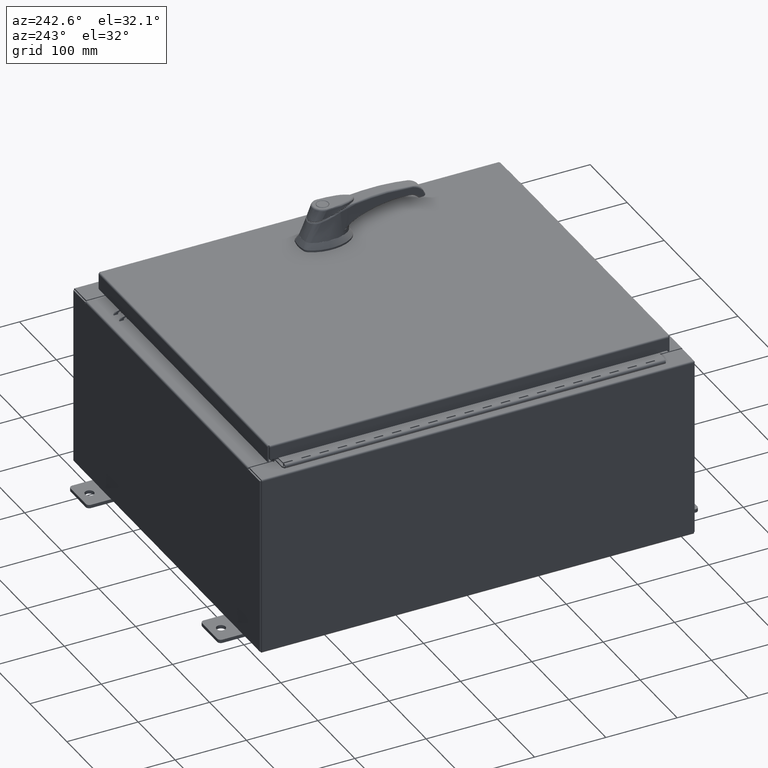
[diagram: clean part render]
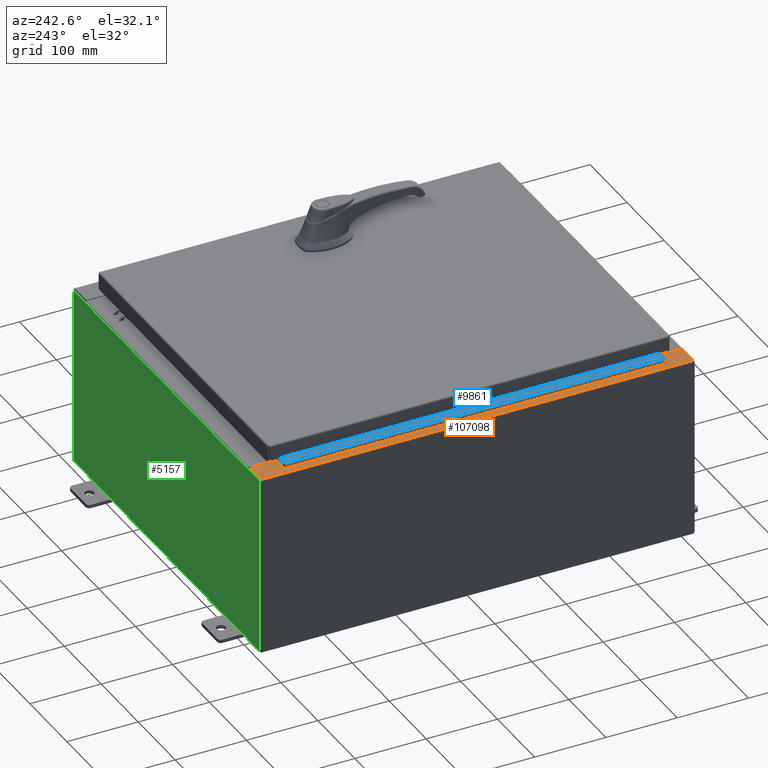
[diagram: same view with three faces highlighted in distinct colors, each labeled with its STEP entity id]
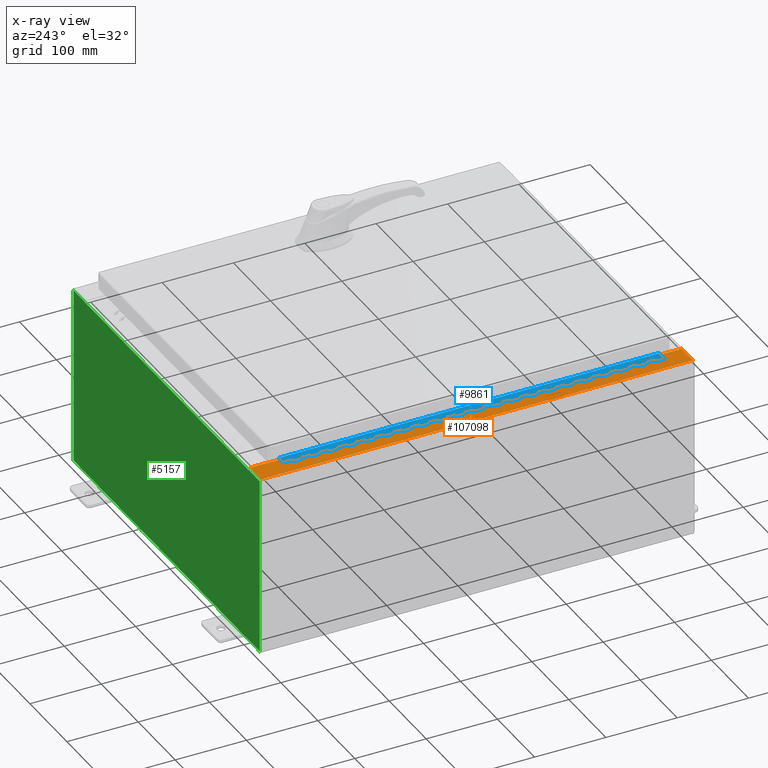
[diagram: x-ray of the same camera — body ghosted, the three highlighted faces saturated]
A machine part, auxiliary view with three faces highlighted in distinct colors.
The next image is the same camera in x-ray (body ghosted, the three faces saturated) — at least one of them is partly hidden behind the body in this view.
Their STEP definitions:

[orange] entity #107098 — the highlighted planar face has unit normal (0, 0, -1).
#392 = DIRECTION ( 'NONE',  ( -1.000000000000000000, -4.340572780399910900E-014, 0.0000000000000000000 ) ) ;
#850 = VECTOR ( 'NONE', #392, 39.37007874015748100 ) ;
#3296 = FACE_OUTER_BOUND ( 'NONE', #56001, .T. ) ;
#4998 = CARTESIAN_POINT ( 'NONE',  ( -8.750050000000037200, -10.63109999999999300, 9.925300000000005300 ) ) ;
#5630 = DIRECTION ( 'NONE',  ( -6.427586101948161900E-031, 1.000000000000000000, -4.584644437783652100E-045 ) ) ;
#5651 = EDGE_CURVE ( 'NONE', #36426, #50704, #39858, .T. ) ;
#8663 = AXIS2_PLACEMENT_3D ( 'NONE', #77132, #103685, #51070 ) ;
#9325 = DIRECTION ( 'NONE',  ( -7.132762385546378400E-015, -0.0000000000000000000, 1.000000000000000000 ) ) ;
#10771 = DIRECTION ( 'NONE',  ( 1.000000000000000000, 1.783190596386595000E-015, 7.132762385546378400E-015 ) ) ;
#10914 = DIRECTION ( 'NONE',  ( -6.427586101948161900E-031, 1.000000000000000000, -4.584644437783652100E-045 ) ) ;
#15766 = CARTESIAN_POINT ( 'NONE',  ( -9.912300000000035600, 11.92530000000000000, 9.925299999999998200 ) ) ;
#17160 = CARTESIAN_POINT ( 'NONE',  ( -9.912300000000035600, 11.92530000000000000, 9.925299999999998200 ) ) ;
#21538 = EDGE_CURVE ( 'NONE', #78593, #108132, #99447, .T. ) ;
#25104 = VERTEX_POINT ( 'NONE', #4998 ) ;
#26019 = AXIS2_PLACEMENT_3D ( 'NONE', #61670, #9325, #70493 ) ;
#28896 = VECTOR ( 'NONE', #76924, 39.37007874015748100 ) ;
#30425 = CARTESIAN_POINT ( 'NONE',  ( -8.750050000000037200, -10.61242499999999300, 9.925300000000007100 ) ) ;
#31701 = CARTESIAN_POINT ( 'NONE',  ( -8.699700000000035500, -10.63109999999999300, 9.925300000000007100 ) ) ;
#31811 = VECTOR ( 'NONE', #5630, 39.37007874015748100 ) ;
#32499 = CARTESIAN_POINT ( 'NONE',  ( -7.105562016127552700E-014, 11.92530000000000000, 9.925300000000067500 ) ) ;
#32629 = CARTESIAN_POINT ( 'NONE',  ( -8.750050000000037200, 10.59375000000000000, 9.925300000000007100 ) ) ;
#33056 = VERTEX_POINT ( 'NONE', #60629 ) ;
#33797 = ORIENTED_EDGE ( 'NONE', *, *, #21538, .F. ) ;
#35793 = ORIENTED_EDGE ( 'NONE', *, *, #82200, .T. ) ;
#36426 = VERTEX_POINT ( 'NONE', #61819 ) ;
#37303 = AXIS2_PLACEMENT_3D ( 'NONE', #30425, #91738, #39222 ) ;
#37514 = CARTESIAN_POINT ( 'NONE',  ( -8.712700000000035400, 10.59375000000000000, 9.925300000000007100 ) ) ;
#39222 = DIRECTION ( 'NONE',  ( 1.000000000000000000, 0.0000000000000000000, 0.0000000000000000000 ) ) ;
#39858 = LINE ( 'NONE', #54656, #86495 ) ;
#41761 = EDGE_CURVE ( 'NONE', #81348, #49087, #110263, .T. ) ;
#43567 = CARTESIAN_POINT ( 'NONE',  ( -8.699700000000035500, -11.92529999999999500, 9.925300000000007100 ) ) ;
#46871 = ORIENTED_EDGE ( 'NONE', *, *, #47229, .F. ) ;
#47229 = EDGE_CURVE ( 'NONE', #61555, #74987, #50063, .T. ) ;
#47854 = CARTESIAN_POINT ( 'NONE',  ( -8.750050000000037200, -10.63109999999999300, 9.925300000000007100 ) ) ;
#48594 = EDGE_CURVE ( 'NONE', #74987, #78593, #74547, .T. ) ;
#49087 = VERTEX_POINT ( 'NONE', #43567 ) ;
#50063 = LINE ( 'NONE', #105350, #850 ) ;
#50300 = CARTESIAN_POINT ( 'NONE',  ( -8.750050000000037200, -10.59374999999999300, 9.925300000000005300 ) ) ;
#50704 = VERTEX_POINT ( 'NONE', #50300 ) ;
#50907 = LINE ( 'NONE', #98579, #71469 ) ;
#51070 = DIRECTION ( 'NONE',  ( -1.000000000000000000, 0.0000000000000000000, -7.132762385546378400E-015 ) ) ;
#51373 = ORIENTED_EDGE ( 'NONE', *, *, #5651, .F. ) ;
#52136 = LINE ( 'NONE', #15766, #28896 ) ;
#54656 = CARTESIAN_POINT ( 'NONE',  ( -8.712700000000035400, -10.59374999999999300, 9.925300000000007100 ) ) ;
#54839 = CARTESIAN_POINT ( 'NONE',  ( -8.750050000000037200, 10.59375000000000000, 9.925300000000005300 ) ) ;
#55939 = ORIENTED_EDGE ( 'NONE', *, *, #48594, .F. ) ;
#56001 = EDGE_LOOP ( 'NONE', ( #46871, #113447, #79194, #56808, #95641, #35793, #59168, #80992, #51373, #108068, #33797, #55939 ) ) ;
#56808 = ORIENTED_EDGE ( 'NONE', *, *, #83518, .F. ) ;
#57073 = DIRECTION ( 'NONE',  ( 1.000000000000000000, 0.0000000000000000000, 0.0000000000000000000 ) ) ;
#58617 = DIRECTION ( 'NONE',  ( -0.0000000000000000000, -1.000000000000000000, -0.0000000000000000000 ) ) ;
#59168 = ORIENTED_EDGE ( 'NONE', *, *, #110726, .F. ) ;
#60629 = CARTESIAN_POINT ( 'NONE',  ( -8.699700000000035500, 11.92530000000000000, 9.925300000000007100 ) ) ;
#61555 = VERTEX_POINT ( 'NONE', #85370 ) ;
#61670 = CARTESIAN_POINT ( 'NONE',  ( -8.750050000000037200, 10.61242500000000000, 9.925300000000007100 ) ) ;
#61819 = CARTESIAN_POINT ( 'NONE',  ( -8.712700000000035400, -10.59374999999999300, 9.925300000000007100 ) ) ;
#66713 = LINE ( 'NONE', #102357, #107996 ) ;
#70493 = DIRECTION ( 'NONE',  ( 1.000000000000000000, 0.0000000000000000000, 0.0000000000000000000 ) ) ;
#71469 = VECTOR ( 'NONE', #10914, 39.37007874015748100 ) ;
#72297 = CARTESIAN_POINT ( 'NONE',  ( -4.979053734218649800E-014, -11.92529999999998000, 9.925300000000067500 ) ) ;
#73073 = EDGE_CURVE ( 'NONE', #33056, #102526, #103220, .T. ) ;
#74547 = CIRCLE ( 'NONE', #26019, 0.01867499999999949400 ) ;
#74972 = EDGE_CURVE ( 'NONE', #61555, #33056, #83875, .T. ) ;
#74987 = VERTEX_POINT ( 'NONE', #93699 ) ;
#75993 = CARTESIAN_POINT ( 'NONE',  ( -8.699700000000035500, -5.591807081111819100E-030, 9.925300000000007100 ) ) ;
#76924 = DIRECTION ( 'NONE',  ( -0.0000000000000000000, 1.000000000000000000, -0.0000000000000000000 ) ) ;
#77132 = CARTESIAN_POINT ( 'NONE',  ( -7.105562016127552700E-014, 0.0000000000000000000, 9.925300000000067500 ) ) ;
#78593 = VERTEX_POINT ( 'NONE', #54839 ) ;
#79194 = ORIENTED_EDGE ( 'NONE', *, *, #73073, .T. ) ;
#80586 = DIRECTION ( 'NONE',  ( -1.000000000000000000, 0.0000000000000000000, 0.0000000000000000000 ) ) ;
#80711 = EDGE_CURVE ( 'NONE', #108132, #36426, #66713, .T. ) ;
#80992 = ORIENTED_EDGE ( 'NONE', *, *, #92633, .F. ) ;
#81348 = VERTEX_POINT ( 'NONE', #86482 ) ;
#82200 = EDGE_CURVE ( 'NONE', #49087, #112140, #50907, .T. ) ;
#83518 = EDGE_CURVE ( 'NONE', #81348, #102526, #52136, .T. ) ;
#83875 = LINE ( 'NONE', #75993, #31811 ) ;
#85370 = CARTESIAN_POINT ( 'NONE',  ( -8.699700000000035500, 10.63110000000000200, 9.925300000000007100 ) ) ;
#86482 = CARTESIAN_POINT ( 'NONE',  ( -9.912300000000035600, -11.92529999999999600, 9.925299999999998200 ) ) ;
#86495 = VECTOR ( 'NONE', #80586, 39.37007874015748100 ) ;
#89918 = VECTOR ( 'NONE', #57073, 39.37007874015748100 ) ;
#91738 = DIRECTION ( 'NONE',  ( -7.132762385546378400E-015, -0.0000000000000000000, 1.000000000000000000 ) ) ;
#92633 = EDGE_CURVE ( 'NONE', #50704, #25104, #107589, .T. ) ;
#92641 = LINE ( 'NONE', #47854, #89918 ) ;
#93699 = CARTESIAN_POINT ( 'NONE',  ( -8.750050000000037200, 10.63109999999999800, 9.925300000000005300 ) ) ;
#94849 = PLANE ( 'NONE',  #8663 ) ;
#95641 = ORIENTED_EDGE ( 'NONE', *, *, #41761, .T. ) ;
#96728 = VECTOR ( 'NONE', #111627, 39.37007874015748100 ) ;
#98579 = CARTESIAN_POINT ( 'NONE',  ( -8.699700000000035500, -5.591807081111819100E-030, 9.925300000000007100 ) ) ;
#99447 = LINE ( 'NONE', #32629, #96728 ) ;
#100424 = VECTOR ( 'NONE', #108103, 39.37007874015748100 ) ;
#102357 = CARTESIAN_POINT ( 'NONE',  ( -8.712700000000035400, 10.59375000000000200, 9.925300000000007100 ) ) ;
#102526 = VERTEX_POINT ( 'NONE', #17160 ) ;
#103220 = LINE ( 'NONE', #32499, #100424 ) ;
#103685 = DIRECTION ( 'NONE',  ( 7.132762385546378400E-015, 0.0000000000000000000, -1.000000000000000000 ) ) ;
#105350 = CARTESIAN_POINT ( 'NONE',  ( -8.699700000000035500, 10.63110000000000200, 9.925300000000007100 ) ) ;
#107098 = ADVANCED_FACE ( 'NONE', ( #3296 ), #94849, .F. ) ;
#107589 = CIRCLE ( 'NONE', #37303, 0.01867499999999949400 ) ;
#107996 = VECTOR ( 'NONE', #58617, 39.37007874015748100 ) ;
#108068 = ORIENTED_EDGE ( 'NONE', *, *, #80711, .F. ) ;
#108103 = DIRECTION ( 'NONE',  ( -1.000000000000000000, -1.633973368572597200E-031, -7.132762385546378400E-015 ) ) ;
#108132 = VERTEX_POINT ( 'NONE', #37514 ) ;
#110263 = LINE ( 'NONE', #72297, #113042 ) ;
#110726 = EDGE_CURVE ( 'NONE', #25104, #112140, #92641, .T. ) ;
#111627 = DIRECTION ( 'NONE',  ( 1.000000000000000000, 0.0000000000000000000, 0.0000000000000000000 ) ) ;
#112140 = VERTEX_POINT ( 'NONE', #31701 ) ;
#113042 = VECTOR ( 'NONE', #10771, 39.37007874015748100 ) ;
#113447 = ORIENTED_EDGE ( 'NONE', *, *, #74972, .T. ) ;

[blue] entity #9861 — the highlighted planar face has unit normal (-0, -0, 1).
#44 = EDGE_CURVE ( 'NONE', #42089, #8704, #12874, .T. ) ;
#404 = CARTESIAN_POINT ( 'NONE',  ( -0.6869999999999973900, 0.8004999999999995500, -5.000000000000000000 ) ) ;
#436 = CARTESIAN_POINT ( 'NONE',  ( -0.6869999999999978300, 0.6754999999999996600, -21.00000000000000000 ) ) ;
#513 = VERTEX_POINT ( 'NONE', #83840 ) ;
#937 = CARTESIAN_POINT ( 'NONE',  ( -0.6869999999999978300, 0.6754999999999996600, -21.00000000000000000 ) ) ;
#990 = CARTESIAN_POINT ( 'NONE',  ( -0.6869999999999998300, 0.07549999999999991400, 0.0000000000000000000 ) ) ;
#1053 = VERTEX_POINT ( 'NONE', #30520 ) ;
#1138 = LINE ( 'NONE', #91485, #88818 ) ;
#1259 = CARTESIAN_POINT ( 'NONE',  ( -0.6869999999999978300, 0.6754999999999996600, -21.00000000000000000 ) ) ;
#1385 = EDGE_CURVE ( 'NONE', #99361, #32660, #16842, .T. ) ;
#1513 = LINE ( 'NONE', #64020, #109819 ) ;
#1830 = CARTESIAN_POINT ( 'NONE',  ( -0.6869999999999982800, 0.5504999999999997700, -10.00000000000000000 ) ) ;
#2016 = DIRECTION ( 'NONE',  ( -3.389037039080723100E-015, -1.000000000000000000, 0.0000000000000000000 ) ) ;
#2031 = VERTEX_POINT ( 'NONE', #14433 ) ;
#2074 = DIRECTION ( 'NONE',  ( -3.389037039080723100E-015, -1.000000000000000000, 0.0000000000000000000 ) ) ;
#2162 = VECTOR ( 'NONE', #112706, 39.37007874015748100 ) ;
#2336 = CARTESIAN_POINT ( 'NONE',  ( -0.6869999999999982800, 0.5504999999999997700, -11.50000000000000000 ) ) ;
#2356 = VECTOR ( 'NONE', #39445, 39.37007874015748100 ) ;
#2393 = EDGE_CURVE ( 'NONE', #1053, #26827, #11249, .T. ) ;
#2480 = LINE ( 'NONE', #57773, #48959 ) ;
#2580 = ORIENTED_EDGE ( 'NONE', *, *, #16507, .T. ) ;
#2700 = CARTESIAN_POINT ( 'NONE',  ( -0.6869999999999978300, 0.6754999999999996600, -4.500000000000000000 ) ) ;
#2965 = CARTESIAN_POINT ( 'NONE',  ( -0.6869999999999978300, 0.6754999999999996600, -8.000000000000000000 ) ) ;
#2975 = CARTESIAN_POINT ( 'NONE',  ( -0.6869999999999973900, 0.8004999999999995500, -19.00000000000000000 ) ) ;
#3197 = EDGE_CURVE ( 'NONE', #55909, #42844, #16625, .T. ) ;
#3486 = DIRECTION ( 'NONE',  ( 0.0000000000000000000, 0.0000000000000000000, 1.000000000000000000 ) ) ;
#3863 = LINE ( 'NONE', #20681, #27158 ) ;
#4077 = LINE ( 'NONE', #42190, #97274 ) ;
#4104 = VECTOR ( 'NONE', #5161, 39.37007874015748100 ) ;
#4216 = VERTEX_POINT ( 'NONE', #47573 ) ;
#4328 = VERTEX_POINT ( 'NONE', #7353 ) ;
#4516 = DIRECTION ( 'NONE',  ( -3.389037039080723100E-015, -1.000000000000000000, 0.0000000000000000000 ) ) ;
#4901 = VERTEX_POINT ( 'NONE', #25169 ) ;
#5025 = CARTESIAN_POINT ( 'NONE',  ( -0.6869999999999973900, 0.8004999999999995500, -3.500000000000000000 ) ) ;
#5161 = DIRECTION ( 'NONE',  ( 0.0000000000000000000, 0.0000000000000000000, 1.000000000000000000 ) ) ;
#5372 = DIRECTION ( 'NONE',  ( 0.0000000000000000000, -0.0000000000000000000, -1.000000000000000000 ) ) ;
#5513 = LINE ( 'NONE', #72598, #75287 ) ;
#5914 = LINE ( 'NONE', #33954, #52409 ) ;
#6495 = DIRECTION ( 'NONE',  ( 3.389037039080723100E-015, 1.000000000000000000, -0.0000000000000000000 ) ) ;
#6590 = DIRECTION ( 'NONE',  ( 3.389037039080723100E-015, 1.000000000000000000, -0.0000000000000000000 ) ) ;
#6667 = CARTESIAN_POINT ( 'NONE',  ( -0.6869999999999982800, 0.5504999999999997700, -8.500000000000000000 ) ) ;
#6894 = DIRECTION ( 'NONE',  ( 0.0000000000000000000, -0.0000000000000000000, -1.000000000000000000 ) ) ;
#7208 = CARTESIAN_POINT ( 'NONE',  ( -0.6869999999999978300, 0.6754999999999996600, -21.00000000000000000 ) ) ;
#7281 = EDGE_CURVE ( 'NONE', #41142, #4328, #53391, .T. ) ;
#7353 = CARTESIAN_POINT ( 'NONE',  ( -0.6869999999999978300, 0.6754999999999996600, -16.00000000000000000 ) ) ;
#7571 = VERTEX_POINT ( 'NONE', #106031 ) ;
#7716 = CARTESIAN_POINT ( 'NONE',  ( -0.6869999999999982800, 0.5504999999999997700, -6.499999999999999100 ) ) ;
#7726 = VECTOR ( 'NONE', #25868, 39.37007874015748100 ) ;
#7759 = ORIENTED_EDGE ( 'NONE', *, *, #14275, .F. ) ;
#7817 = CARTESIAN_POINT ( 'NONE',  ( -0.6869999999999978300, 0.6754999999999996600, -0.5000000000000000000 ) ) ;
#7913 = VERTEX_POINT ( 'NONE', #83244 ) ;
#7941 = DIRECTION ( 'NONE',  ( 0.0000000000000000000, 0.0000000000000000000, 1.000000000000000000 ) ) ;
#8123 = EDGE_CURVE ( 'NONE', #38321, #8704, #9527, .T. ) ;
#8526 = CARTESIAN_POINT ( 'NONE',  ( -0.6869999999999978300, 0.6754999999999996600, -13.50000000000000000 ) ) ;
#8539 = DIRECTION ( 'NONE',  ( 0.0000000000000000000, -0.0000000000000000000, -1.000000000000000000 ) ) ;
#8574 = VECTOR ( 'NONE', #81202, 39.37007874015748100 ) ;
#8618 = VECTOR ( 'NONE', #85750, 39.37007874015748100 ) ;
#8661 = VECTOR ( 'NONE', #57454, 39.37007874015748100 ) ;
#8704 = VERTEX_POINT ( 'NONE', #110798 ) ;
#8760 = ORIENTED_EDGE ( 'NONE', *, *, #21693, .F. ) ;
#8786 = EDGE_CURVE ( 'NONE', #41142, #76740, #32661, .T. ) ;
#8985 = VERTEX_POINT ( 'NONE', #60689 ) ;
#9049 = LINE ( 'NONE', #937, #52770 ) ;
#9059 = EDGE_CURVE ( 'NONE', #23447, #97213, #42214, .T. ) ;
#9150 = EDGE_CURVE ( 'NONE', #111226, #7913, #39422, .T. ) ;
#9439 = ORIENTED_EDGE ( 'NONE', *, *, #101188, .F. ) ;
#9457 = EDGE_CURVE ( 'NONE', #103866, #17915, #2480, .T. ) ;
#9519 = VECTOR ( 'NONE', #65883, 39.37007874015748100 ) ;
#9518 = CARTESIAN_POINT ( 'NONE',  ( -0.6869999999999978300, 0.6754999999999996600, -15.50000000000000000 ) ) ;
#9527 = LINE ( 'NONE', #103254, #97195 ) ;
#9594 = DIRECTION ( 'NONE',  ( 3.389037039080723100E-015, 1.000000000000000000, -0.0000000000000000000 ) ) ;
#9655 = ORIENTED_EDGE ( 'NONE', *, *, #64523, .F. ) ;
#9816 = CARTESIAN_POINT ( 'NONE',  ( -0.6869999999999978300, 0.6754999999999996600, -21.00000000000000000 ) ) ;
#9861 = ADVANCED_FACE ( 'NONE', ( #47530 ), #107602, .T. ) ;
#10894 = CARTESIAN_POINT ( 'NONE',  ( -0.6869999999999973900, 0.8004999999999995500, -1.499999999999999800 ) ) ;
#10926 = DIRECTION ( 'NONE',  ( -3.389037039080723100E-015, -1.000000000000000000, 0.0000000000000000000 ) ) ;
#11249 = LINE ( 'NONE', #88910, #98907 ) ;
#11578 = DIRECTION ( 'NONE',  ( 3.389037039080723100E-015, 1.000000000000000000, -0.0000000000000000000 ) ) ;
#11664 = CARTESIAN_POINT ( 'NONE',  ( -0.6869999999999982800, 0.5504999999999997700, -9.500000000000000000 ) ) ;
#11807 = DIRECTION ( 'NONE',  ( 3.389037039080723100E-015, 1.000000000000000000, -0.0000000000000000000 ) ) ;
#12021 = VECTOR ( 'NONE', #8539, 39.37007874015748100 ) ;
#12093 = CARTESIAN_POINT ( 'NONE',  ( -0.6869999999999982800, 0.5504999999999997700, -14.49999999999999800 ) ) ;
#12294 = EDGE_CURVE ( 'NONE', #93665, #32738, #71956, .T. ) ;
#12874 = LINE ( 'NONE', #92402, #79928 ) ;
#13057 = VECTOR ( 'NONE', #96913, 39.37007874015748100 ) ;
#13224 = ORIENTED_EDGE ( 'NONE', *, *, #55659, .T. ) ;
#13388 = ORIENTED_EDGE ( 'NONE', *, *, #77105, .T. ) ;
#13469 = ORIENTED_EDGE ( 'NONE', *, *, #100346, .T. ) ;
#13520 = VECTOR ( 'NONE', #2016, 39.37007874015748100 ) ;
#13552 = CARTESIAN_POINT ( 'NONE',  ( -0.6869999999999973900, 0.8004999999999995500, -9.500000000000000000 ) ) ;
#13714 = EDGE_CURVE ( 'NONE', #8985, #513, #21165, .T. ) ;
#13858 = CARTESIAN_POINT ( 'NONE',  ( -0.6869999999999982800, 0.5504999999999997700, -15.50000000000000000 ) ) ;
#13945 = ORIENTED_EDGE ( 'NONE', *, *, #64173, .F. ) ;
#14275 = EDGE_CURVE ( 'NONE', #33190, #77324, #86850, .T. ) ;
#14433 = CARTESIAN_POINT ( 'NONE',  ( -0.6869999999999982800, 0.5504999999999997700, -11.99999999999999800 ) ) ;
#14802 = EDGE_CURVE ( 'NONE', #39192, #40907, #78685, .T. ) ;
#14992 = DIRECTION ( 'NONE',  ( 0.0000000000000000000, -0.0000000000000000000, -1.000000000000000000 ) ) ;
#15013 = EDGE_CURVE ( 'NONE', #48555, #18998, #67671, .T. ) ;
#15044 = ORIENTED_EDGE ( 'NONE', *, *, #103931, .F. ) ;
#15182 = CARTESIAN_POINT ( 'NONE',  ( -0.6869999999999973900, 0.8004999999999995500, -7.000000000000000000 ) ) ;
#16003 = VECTOR ( 'NONE', #14992, 39.37007874015748100 ) ;
#16114 = ORIENTED_EDGE ( 'NONE', *, *, #66548, .T. ) ;
#16328 = DIRECTION ( 'NONE',  ( 0.0000000000000000000, -0.0000000000000000000, -1.000000000000000000 ) ) ;
#16507 = EDGE_CURVE ( 'NONE', #34297, #27335, #42877, .T. ) ;
#16536 = CARTESIAN_POINT ( 'NONE',  ( -0.6869999999999978300, 0.6754999999999996600, -17.50000000000000000 ) ) ;
#16625 = LINE ( 'NONE', #9816, #63095 ) ;
#16842 = LINE ( 'NONE', #24040, #60598 ) ;
#16998 = EDGE_CURVE ( 'NONE', #26427, #7571, #105971, .T. ) ;
#17114 = DIRECTION ( 'NONE',  ( 0.0000000000000000000, 0.0000000000000000000, 1.000000000000000000 ) ) ;
#17142 = ORIENTED_EDGE ( 'NONE', *, *, #54578, .F. ) ;
#17181 = ORIENTED_EDGE ( 'NONE', *, *, #45260, .F. ) ;
#17205 = CARTESIAN_POINT ( 'NONE',  ( -0.6869999999999982800, 0.5504999999999997700, -2.500000000000000000 ) ) ;
#17447 = LINE ( 'NONE', #101354, #37906 ) ;
#17726 = LINE ( 'NONE', #12093, #64170 ) ;
#17781 = CARTESIAN_POINT ( 'NONE',  ( -0.6869999999999982800, 0.5504999999999997700, -20.50000000000000400 ) ) ;
#17859 = DIRECTION ( 'NONE',  ( 3.389037039080723100E-015, 1.000000000000000000, -0.0000000000000000000 ) ) ;
#17910 = ORIENTED_EDGE ( 'NONE', *, *, #105121, .T. ) ;
#17915 = VERTEX_POINT ( 'NONE', #37793 ) ;
#17946 = VECTOR ( 'NONE', #51556, 39.37007874015748100 ) ;
#18038 = CARTESIAN_POINT ( 'NONE',  ( -0.6869999999999978300, 0.6754999999999996600, -21.00000000000000000 ) ) ;
#18134 = LINE ( 'NONE', #15182, #85183 ) ;
#18390 = DIRECTION ( 'NONE',  ( -3.389037039080723100E-015, -1.000000000000000000, 0.0000000000000000000 ) ) ;
#18940 = CARTESIAN_POINT ( 'NONE',  ( -0.6869999999999982800, 0.5504999999999997700, -17.99999999999999600 ) ) ;
#18998 = VERTEX_POINT ( 'NONE', #38271 ) ;
#19232 = DIRECTION ( 'NONE',  ( 3.389037039080723100E-015, 1.000000000000000000, -0.0000000000000000000 ) ) ;
#19315 = CARTESIAN_POINT ( 'NONE',  ( -0.6869999999999982800, 0.5504999999999997700, -5.500000000000000000 ) ) ;
#19346 = CARTESIAN_POINT ( 'NONE',  ( -0.6869999999999978300, 0.6754999999999996600, -10.50000000000000000 ) ) ;
#19636 = ORIENTED_EDGE ( 'NONE', *, *, #92272, .F. ) ;
#19675 = VECTOR ( 'NONE', #47391, 39.37007874015748100 ) ;
#19685 = DIRECTION ( 'NONE',  ( -3.389037039080723100E-015, -1.000000000000000000, 0.0000000000000000000 ) ) ;
#19688 = EDGE_CURVE ( 'NONE', #25905, #80966, #76296, .T. ) ;
#19809 = VECTOR ( 'NONE', #7941, 39.37007874015748100 ) ;
#20141 = CARTESIAN_POINT ( 'NONE',  ( -0.6869999999999973900, 0.8004999999999995500, -17.50000000000000000 ) ) ;
#20255 = DIRECTION ( 'NONE',  ( 3.389037039080723100E-015, 1.000000000000000000, -0.0000000000000000000 ) ) ;
#20276 = DIRECTION ( 'NONE',  ( 3.389037039080723100E-015, 1.000000000000000000, -0.0000000000000000000 ) ) ;
#20426 = LINE ( 'NONE', #111319, #113702 ) ;
#20535 = ORIENTED_EDGE ( 'NONE', *, *, #98172, .F. ) ;
#20681 = CARTESIAN_POINT ( 'NONE',  ( -0.6869999999999973900, 0.8004999999999995500, -2.000000000000000000 ) ) ;
#20919 = DIRECTION ( 'NONE',  ( 3.369016658928398200E-015, 1.000000000000000000, 0.0000000000000000000 ) ) ;
#20994 = EDGE_CURVE ( 'NONE', #111388, #27335, #33696, .T. ) ;
#21038 = CARTESIAN_POINT ( 'NONE',  ( -0.6869999999999982800, 0.5504999999999997700, -21.00000000000000000 ) ) ;
#21165 = LINE ( 'NONE', #10894, #64892 ) ;
#21581 = VECTOR ( 'NONE', #29096, 39.37007874015748100 ) ;
#21693 = EDGE_CURVE ( 'NONE', #28306, #4901, #109076, .T. ) ;
#21975 = CARTESIAN_POINT ( 'NONE',  ( -0.6869999999999982800, 0.5504999999999997700, -3.500000000000000000 ) ) ;
#22138 = CARTESIAN_POINT ( 'NONE',  ( -0.6869999999999973900, 0.8004999999999995500, -14.49999999999999800 ) ) ;
#22147 = ORIENTED_EDGE ( 'NONE', *, *, #39412, .F. ) ;
#22162 = VERTEX_POINT ( 'NONE', #68415 ) ;
#22182 = VERTEX_POINT ( 'NONE', #42405 ) ;
#22814 = VERTEX_POINT ( 'NONE', #59367 ) ;
#22846 = LINE ( 'NONE', #58197, #66581 ) ;
#22927 = LINE ( 'NONE', #53129, #63943 ) ;
#22997 = ORIENTED_EDGE ( 'NONE', *, *, #96155, .F. ) ;
#23011 = DIRECTION ( 'NONE',  ( -3.389037039080723100E-015, -1.000000000000000000, 0.0000000000000000000 ) ) ;
#23139 = ORIENTED_EDGE ( 'NONE', *, *, #75304, .F. ) ;
#23267 = ORIENTED_EDGE ( 'NONE', *, *, #96201, .F. ) ;
#23277 = CARTESIAN_POINT ( 'NONE',  ( -0.6869999999999982800, 0.5504999999999997700, -6.499999999999999100 ) ) ;
#23447 = VERTEX_POINT ( 'NONE', #16536 ) ;
#23477 = LINE ( 'NONE', #108221, #111245 ) ;
#23804 = VERTEX_POINT ( 'NONE', #21038 ) ;
#23819 = DIRECTION ( 'NONE',  ( -3.389037039080723100E-015, -1.000000000000000000, 0.0000000000000000000 ) ) ;
#24040 = CARTESIAN_POINT ( 'NONE',  ( -0.6869999999999973900, 0.8004999999999995500, -2.500000000000000000 ) ) ;
#24178 = DIRECTION ( 'NONE',  ( -3.389037039080723100E-015, -1.000000000000000000, 0.0000000000000000000 ) ) ;
#24239 = VECTOR ( 'NONE', #112563, 39.37007874015748100 ) ;
#24338 = LINE ( 'NONE', #55106, #21581 ) ;
#24341 = VERTEX_POINT ( 'NONE', #17781 ) ;
#24451 = CARTESIAN_POINT ( 'NONE',  ( -0.6869999999999973900, 0.8004999999999995500, -18.50000000000000000 ) ) ;
#24523 = CARTESIAN_POINT ( 'NONE',  ( -0.6869999999999973900, 0.8004999999999995500, -11.00000000000000000 ) ) ;
#24754 = VECTOR ( 'NONE', #96485, 39.37007874015748100 ) ;
#25144 = LINE ( 'NONE', #38618, #19675 ) ;
#25168 = LINE ( 'NONE', #5025, #92285 ) ;
#25169 = CARTESIAN_POINT ( 'NONE',  ( -0.6869999999999982800, 0.5504999999999997700, -4.000000000000000000 ) ) ;
#25182 = EDGE_CURVE ( 'NONE', #82058, #56576, #75616, .T. ) ;
#25622 = LINE ( 'NONE', #94952, #46091 ) ;
#25646 = ORIENTED_EDGE ( 'NONE', *, *, #84532, .F. ) ;
#25868 = DIRECTION ( 'NONE',  ( 3.389037039080723100E-015, 1.000000000000000000, -0.0000000000000000000 ) ) ;
#25905 = VERTEX_POINT ( 'NONE', #6667 ) ;
#25946 = CARTESIAN_POINT ( 'NONE',  ( -0.6869999999999982800, 0.5504999999999997700, -6.000000000000000900 ) ) ;
#25963 = LINE ( 'NONE', #71705, #90379 ) ;
#25999 = LINE ( 'NONE', #82877, #93137 ) ;
#26060 = VECTOR ( 'NONE', #11807, 39.37007874015748100 ) ;
#26375 = VECTOR ( 'NONE', #49699, 39.37007874015748100 ) ;
#26427 = VERTEX_POINT ( 'NONE', #58297 ) ;
#26513 = CARTESIAN_POINT ( 'NONE',  ( -0.6869999999999978300, 0.6754999999999996600, -14.99999999999999800 ) ) ;
#26827 = VERTEX_POINT ( 'NONE', #26513 ) ;
#27158 = VECTOR ( 'NONE', #108060, 39.37007874015748100 ) ;
#27210 = CARTESIAN_POINT ( 'NONE',  ( -0.6869999999999978300, 0.6754999999999996600, -2.999999999999999600 ) ) ;
#27211 = ORIENTED_EDGE ( 'NONE', *, *, #99021, .F. ) ;
#27335 = VERTEX_POINT ( 'NONE', #84587 ) ;
#27378 = VECTOR ( 'NONE', #43724, 39.37007874015748100 ) ;
#27518 = EDGE_CURVE ( 'NONE', #88504, #28717, #97390, .T. ) ;
#27540 = VECTOR ( 'NONE', #62533, 39.37007874015748100 ) ;
#27734 = VERTEX_POINT ( 'NONE', #72967 ) ;
#27997 = VECTOR ( 'NONE', #68325, 39.37007874015748100 ) ;
#28124 = CARTESIAN_POINT ( 'NONE',  ( -0.6869999999999978300, 0.6754999999999996600, -9.500000000000000000 ) ) ;
#28164 = VERTEX_POINT ( 'NONE', #990 ) ;
#28306 = VERTEX_POINT ( 'NONE', #21975 ) ;
#28357 = CARTESIAN_POINT ( 'NONE',  ( -0.6869999999999973900, 0.8004999999999995500, -17.00000000000000000 ) ) ;
#28367 = EDGE_CURVE ( 'NONE', #51155, #81564, #4077, .T. ) ;
#28717 = VERTEX_POINT ( 'NONE', #98837 ) ;
#28730 = VECTOR ( 'NONE', #20919, 39.37007874015748100 ) ;
#28872 = DIRECTION ( 'NONE',  ( -3.389037039080723100E-015, -1.000000000000000000, 0.0000000000000000000 ) ) ;
#29096 = DIRECTION ( 'NONE',  ( 0.0000000000000000000, 0.0000000000000000000, 1.000000000000000000 ) ) ;
#29268 = ORIENTED_EDGE ( 'NONE', *, *, #30350, .F. ) ;
#29281 = VECTOR ( 'NONE', #94324, 39.37007874015748100 ) ;
#29612 = CARTESIAN_POINT ( 'NONE',  ( -0.6869999999999978300, 0.6754999999999996600, -2.000000000000000000 ) ) ;
#29640 = DIRECTION ( 'NONE',  ( -3.389037039080723100E-015, -1.000000000000000000, 0.0000000000000000000 ) ) ;
#29927 = ORIENTED_EDGE ( 'NONE', *, *, #41531, .F. ) ;
#30350 = EDGE_CURVE ( 'NONE', #513, #37258, #25963, .T. ) ;
#30520 = CARTESIAN_POINT ( 'NONE',  ( -0.6869999999999982800, 0.5504999999999997700, -14.99999999999999800 ) ) ;
#30574 = EDGE_CURVE ( 'NONE', #76027, #33190, #76547, .T. ) ;
#31099 = ORIENTED_EDGE ( 'NONE', *, *, #9457, .F. ) ;
#31203 = ORIENTED_EDGE ( 'NONE', *, *, #95176, .F. ) ;
#31485 = VERTEX_POINT ( 'NONE', #35123 ) ;
#31491 = ORIENTED_EDGE ( 'NONE', *, *, #25182, .F. ) ;
#31572 = EDGE_CURVE ( 'NONE', #17915, #4328, #48067, .T. ) ;
#31577 = CARTESIAN_POINT ( 'NONE',  ( -0.6869999999999982800, 0.5504999999999997700, -16.50000000000000000 ) ) ;
#31680 = CARTESIAN_POINT ( 'NONE',  ( -0.6869999999999978300, 0.6754999999999996600, -21.00000000000000000 ) ) ;
#31875 = LINE ( 'NONE', #92349, #8661 ) ;
#32126 = VECTOR ( 'NONE', #102985, 39.37007874015748100 ) ;
#32471 = ORIENTED_EDGE ( 'NONE', *, *, #54661, .F. ) ;
#32642 = VERTEX_POINT ( 'NONE', #104531 ) ;
#32660 = VERTEX_POINT ( 'NONE', #17205 ) ;
#32661 = LINE ( 'NONE', #58598, #66854 ) ;
#32738 = VERTEX_POINT ( 'NONE', #108700 ) ;
#32794 = ORIENTED_EDGE ( 'NONE', *, *, #28367, .F. ) ;
#32801 = LINE ( 'NONE', #61412, #56058 ) ;
#32906 = LINE ( 'NONE', #112267, #82222 ) ;
#33190 = VERTEX_POINT ( 'NONE', #11664 ) ;
#33247 = ORIENTED_EDGE ( 'NONE', *, *, #108626, .F. ) ;
#33457 = LINE ( 'NONE', #54482, #100634 ) ;
#33680 = LINE ( 'NONE', #7208, #80248 ) ;
#33696 = LINE ( 'NONE', #60650, #7726 ) ;
#33954 = CARTESIAN_POINT ( 'NONE',  ( -0.6869999999999982800, 0.5504999999999997700, -4.500000000000000000 ) ) ;
#34297 = VERTEX_POINT ( 'NONE', #54852 ) ;
#34586 = ORIENTED_EDGE ( 'NONE', *, *, #72435, .T. ) ;
#34744 = EDGE_CURVE ( 'NONE', #81564, #81550, #97337, .T. ) ;
#35123 = CARTESIAN_POINT ( 'NONE',  ( -0.6869999999999978300, 0.6754999999999996600, 0.0000000000000000000 ) ) ;
#35148 = CARTESIAN_POINT ( 'NONE',  ( -0.6869999999999973900, 0.8004999999999995500, -13.50000000000000000 ) ) ;
#35256 = LINE ( 'NONE', #43302, #12021 ) ;
#35314 = ORIENTED_EDGE ( 'NONE', *, *, #14802, .F. ) ;
#35362 = ORIENTED_EDGE ( 'NONE', *, *, #106719, .T. ) ;
#35456 = DIRECTION ( 'NONE',  ( 0.0000000000000000000, 0.0000000000000000000, 1.000000000000000000 ) ) ;
#35579 = DIRECTION ( 'NONE',  ( 0.0000000000000000000, 0.0000000000000000000, 1.000000000000000000 ) ) ;
#35650 = VECTOR ( 'NONE', #103039, 39.37007874015748100 ) ;
#36068 = EDGE_CURVE ( 'NONE', #34297, #42348, #83406, .T. ) ;
#36167 = CARTESIAN_POINT ( 'NONE',  ( -0.6869999999999978300, 0.6754999999999996600, -21.00000000000000000 ) ) ;
#36318 = ORIENTED_EDGE ( 'NONE', *, *, #51710, .F. ) ;
#36772 = CARTESIAN_POINT ( 'NONE',  ( -0.6869999999999973900, 0.8004999999999995500, -4.500000000000000000 ) ) ;
#36778 = LINE ( 'NONE', #107002, #13520 ) ;
#37169 = VERTEX_POINT ( 'NONE', #18940 ) ;
#37258 = VERTEX_POINT ( 'NONE', #100435 ) ;
#37668 = ORIENTED_EDGE ( 'NONE', *, *, #9059, .F. ) ;
#37705 = VERTEX_POINT ( 'NONE', #98417 ) ;
#37793 = CARTESIAN_POINT ( 'NONE',  ( -0.6869999999999982800, 0.5504999999999997700, -16.00000000000000000 ) ) ;
#37822 = CARTESIAN_POINT ( 'NONE',  ( -0.6869999999999982800, 0.5504999999999997700, -14.00000000000000000 ) ) ;
#37906 = VECTOR ( 'NONE', #40007, 39.37007874015748100 ) ;
#38017 = DIRECTION ( 'NONE',  ( -3.389037039080723100E-015, -1.000000000000000000, 0.0000000000000000000 ) ) ;
#38082 = EDGE_CURVE ( 'NONE', #96513, #73142, #22927, .T. ) ;
#38149 = ORIENTED_EDGE ( 'NONE', *, *, #7281, .T. ) ;
#38271 = CARTESIAN_POINT ( 'NONE',  ( -0.6869999999999982800, 0.5504999999999997700, -0.5000000000000000000 ) ) ;
#38278 = VECTOR ( 'NONE', #35579, 39.37007874015748100 ) ;
#38321 = VERTEX_POINT ( 'NONE', #72603 ) ;
#38362 = LINE ( 'NONE', #111886, #79456 ) ;
#38413 = LINE ( 'NONE', #404, #102927 ) ;
#38618 = CARTESIAN_POINT ( 'NONE',  ( -0.6869999999999978300, 0.6754999999999996600, -21.00000000000000000 ) ) ;
#38682 = VECTOR ( 'NONE', #35456, 39.37007874015748100 ) ;
#39190 = LINE ( 'NONE', #49712, #16003 ) ;
#39192 = VERTEX_POINT ( 'NONE', #43977 ) ;
#39412 = EDGE_CURVE ( 'NONE', #80966, #4216, #91284, .T. ) ;
#39422 = LINE ( 'NONE', #99764, #83265 ) ;
#39445 = DIRECTION ( 'NONE',  ( 0.0000000000000000000, -0.0000000000000000000, -1.000000000000000000 ) ) ;
#39587 = EDGE_CURVE ( 'NONE', #96655, #64915, #33680, .T. ) ;
#39764 = CARTESIAN_POINT ( 'NONE',  ( -0.6869999999999978300, 0.6754999999999996600, -10.00000000000000000 ) ) ;
#39803 = CARTESIAN_POINT ( 'NONE',  ( -0.6869999999999978300, 0.6754999999999996600, -7.000000000000000000 ) ) ;
#40007 = DIRECTION ( 'NONE',  ( 3.389037039080723100E-015, 1.000000000000000000, -0.0000000000000000000 ) ) ;
#40280 = DIRECTION ( 'NONE',  ( 3.389037039080723100E-015, 1.000000000000000000, -0.0000000000000000000 ) ) ;
#40281 = DIRECTION ( 'NONE',  ( 3.389037039080723100E-015, 1.000000000000000000, -0.0000000000000000000 ) ) ;
#40907 = VERTEX_POINT ( 'NONE', #67698 ) ;
#41142 = VERTEX_POINT ( 'NONE', #52737 ) ;
#41531 = EDGE_CURVE ( 'NONE', #73142, #72195, #53970, .T. ) ;
#41574 = ORIENTED_EDGE ( 'NONE', *, *, #38082, .F. ) ;
#41684 = CARTESIAN_POINT ( 'NONE',  ( -0.6869999999999978300, 0.6754999999999996600, -21.00000000000000000 ) ) ;
#41817 = CARTESIAN_POINT ( 'NONE',  ( -0.6869999999999973900, 0.8004999999999995500, -7.499999999999999100 ) ) ;
#42089 = VERTEX_POINT ( 'NONE', #25946 ) ;
#42190 = CARTESIAN_POINT ( 'NONE',  ( -0.6869999999999982800, 0.5504999999999997700, -7.499999999999999100 ) ) ;
#42214 = LINE ( 'NONE', #20141, #112229 ) ;
#42278 = ORIENTED_EDGE ( 'NONE', *, *, #44, .F. ) ;
#42348 = VERTEX_POINT ( 'NONE', #65218 ) ;
#42402 = DIRECTION ( 'NONE',  ( 0.0000000000000000000, -0.0000000000000000000, -1.000000000000000000 ) ) ;
#42405 = CARTESIAN_POINT ( 'NONE',  ( -0.6869999999999978300, 0.6754999999999996600, -11.50000000000000000 ) ) ;
#42733 = DIRECTION ( 'NONE',  ( 0.0000000000000000000, -0.0000000000000000000, -1.000000000000000000 ) ) ;
#42844 = VERTEX_POINT ( 'NONE', #62467 ) ;
#42850 = VECTOR ( 'NONE', #62441, 39.37007874015748100 ) ;
#42877 = LINE ( 'NONE', #31680, #86765 ) ;
#43023 = LINE ( 'NONE', #60317, #19809 ) ;
#43033 = CARTESIAN_POINT ( 'NONE',  ( -0.6869999999999982800, 0.5504999999999997700, -11.00000000000000000 ) ) ;
#43179 = CARTESIAN_POINT ( 'NONE',  ( -0.6869999999999982800, 0.5504999999999997700, -19.50000000000000000 ) ) ;
#43190 = CARTESIAN_POINT ( 'NONE',  ( -0.6869999999999982800, 0.5504999999999997700, -17.00000000000000000 ) ) ;
#43302 = CARTESIAN_POINT ( 'NONE',  ( -0.6869999999999982800, 0.5504999999999997700, -11.50000000000000000 ) ) ;
#43724 = DIRECTION ( 'NONE',  ( -3.389037039080723100E-015, -1.000000000000000000, 0.0000000000000000000 ) ) ;
#43977 = CARTESIAN_POINT ( 'NONE',  ( -0.6869999999999978300, 0.6754999999999996600, -18.50000000000000000 ) ) ;
#44039 = DIRECTION ( 'NONE',  ( 0.0000000000000000000, -0.0000000000000000000, -1.000000000000000000 ) ) ;
#44367 = CARTESIAN_POINT ( 'NONE',  ( -0.6869999999999982800, 0.5504999999999997700, -9.500000000000000000 ) ) ;
#44408 = VECTOR ( 'NONE', #106392, 39.37007874015748100 ) ;
#44633 = VECTOR ( 'NONE', #20276, 39.37007874015748100 ) ;
#44660 = EDGE_CURVE ( 'NONE', #24341, #23804, #69405, .T. ) ;
#44670 = LINE ( 'NONE', #51106, #24239 ) ;
#44847 = ORIENTED_EDGE ( 'NONE', *, *, #67462, .T. ) ;
#45254 = DIRECTION ( 'NONE',  ( 0.0000000000000000000, 0.0000000000000000000, 1.000000000000000000 ) ) ;
#45260 = EDGE_CURVE ( 'NONE', #22162, #82058, #39190, .T. ) ;
#46091 = VECTOR ( 'NONE', #42402, 39.37007874015748100 ) ;
#46152 = ORIENTED_EDGE ( 'NONE', *, *, #97523, .F. ) ;
#46540 = DIRECTION ( 'NONE',  ( 3.369016658928398200E-015, 1.000000000000000000, 0.0000000000000000000 ) ) ;
#46557 = ORIENTED_EDGE ( 'NONE', *, *, #9150, .F. ) ;
#46665 = CARTESIAN_POINT ( 'NONE',  ( -0.6869999999999982800, 0.5504999999999997700, -4.500000000000000000 ) ) ;
#46800 = CARTESIAN_POINT ( 'NONE',  ( -0.6869999999999973900, 0.8004999999999995500, -16.00000000000000000 ) ) ;
#46885 = CARTESIAN_POINT ( 'NONE',  ( -0.6869999999999982800, 0.5504999999999997700, -8.000000000000000000 ) ) ;
#47212 = LINE ( 'NONE', #55851, #91142 ) ;
#47336 = ORIENTED_EDGE ( 'NONE', *, *, #95572, .T. ) ;
#47391 = DIRECTION ( 'NONE',  ( 0.0000000000000000000, 0.0000000000000000000, 1.000000000000000000 ) ) ;
#47530 = FACE_OUTER_BOUND ( 'NONE', #95543, .T. ) ;
#47573 = CARTESIAN_POINT ( 'NONE',  ( -0.6869999999999978300, 0.6754999999999996600, -9.000000000000000000 ) ) ;
#47906 = LINE ( 'NONE', #28357, #91838 ) ;
#47977 = LINE ( 'NONE', #54444, #91911 ) ;
#48067 = LINE ( 'NONE', #46800, #89298 ) ;
#48555 = VERTEX_POINT ( 'NONE', #7817 ) ;
#48959 = VECTOR ( 'NONE', #5372, 39.37007874015748100 ) ;
#49085 = VERTEX_POINT ( 'NONE', #43190 ) ;
#49633 = VERTEX_POINT ( 'NONE', #46665 ) ;
#49699 = DIRECTION ( 'NONE',  ( 3.369016658928398200E-015, 1.000000000000000000, 0.0000000000000000000 ) ) ;
#49712 = CARTESIAN_POINT ( 'NONE',  ( -0.6869999999999982800, 0.5504999999999997700, -10.50000000000000000 ) ) ;
#50191 = EDGE_CURVE ( 'NONE', #97213, #37169, #59342, .T. ) ;
#50587 = LINE ( 'NONE', #78162, #27378 ) ;
#50807 = DIRECTION ( 'NONE',  ( 0.0000000000000000000, -0.0000000000000000000, -1.000000000000000000 ) ) ;
#51019 = DIRECTION ( 'NONE',  ( 0.0000000000000000000, 0.0000000000000000000, 1.000000000000000000 ) ) ;
#51050 = VERTEX_POINT ( 'NONE', #19346 ) ;
#51106 = CARTESIAN_POINT ( 'NONE',  ( -0.6869999999999978300, 0.6754999999999996600, -21.00000000000000000 ) ) ;
#51155 = VERTEX_POINT ( 'NONE', #59695 ) ;
#51556 = DIRECTION ( 'NONE',  ( 0.0000000000000000000, 0.0000000000000000000, 1.000000000000000000 ) ) ;
#51699 = ORIENTED_EDGE ( 'NONE', *, *, #15013, .F. ) ;
#51710 = EDGE_CURVE ( 'NONE', #7913, #103963, #101724, .T. ) ;
#52068 = ORIENTED_EDGE ( 'NONE', *, *, #16998, .F. ) ;
#52409 = VECTOR ( 'NONE', #42733, 39.37007874015748100 ) ;
#52737 = CARTESIAN_POINT ( 'NONE',  ( -0.6869999999999978300, 0.6754999999999996600, -16.50000000000000000 ) ) ;
#52770 = VECTOR ( 'NONE', #45254, 39.37007874015748100 ) ;
#52805 = EDGE_CURVE ( 'NONE', #55909, #93024, #23477, .T. ) ;
#53108 = VECTOR ( 'NONE', #70418, 39.37007874015748100 ) ;
#53129 = CARTESIAN_POINT ( 'NONE',  ( -0.6869999999999973900, 0.8004999999999995500, -19.50000000000000000 ) ) ;
#53169 = EDGE_CURVE ( 'NONE', #112476, #103866, #47977, .T. ) ;
#53391 = LINE ( 'NONE', #92466, #4104 ) ;
#53970 = LINE ( 'NONE', #77143, #27997 ) ;
#54444 = CARTESIAN_POINT ( 'NONE',  ( -0.6869999999999973900, 0.8004999999999995500, -15.50000000000000000 ) ) ;
#54482 = CARTESIAN_POINT ( 'NONE',  ( -0.6869999999999973900, 0.8004999999999995500, -10.50000000000000000 ) ) ;
#54578 = EDGE_CURVE ( 'NONE', #28164, #31485, #95913, .T. ) ;
#54661 = EDGE_CURVE ( 'NONE', #32660, #91036, #25999, .T. ) ;
#54852 = CARTESIAN_POINT ( 'NONE',  ( -0.6869999999999978300, 0.6754999999999996600, -14.49999999999999800 ) ) ;
#55047 = CARTESIAN_POINT ( 'NONE',  ( -0.6869999999999973900, 0.8004999999999995500, -9.000000000000000000 ) ) ;
#55106 = CARTESIAN_POINT ( 'NONE',  ( -0.6869999999999978300, 0.6754999999999996600, -21.00000000000000000 ) ) ;
#55434 = VERTEX_POINT ( 'NONE', #2700 ) ;
#55659 = EDGE_CURVE ( 'NONE', #8985, #7571, #20426, .T. ) ;
#55729 = ORIENTED_EDGE ( 'NONE', *, *, #110301, .T. ) ;
#55772 = LINE ( 'NONE', #36772, #96954 ) ;
#55851 = CARTESIAN_POINT ( 'NONE',  ( -0.6869999999999973900, 0.8004999999999995500, -10.00000000000000000 ) ) ;
#55909 = VERTEX_POINT ( 'NONE', #95922 ) ;
#56006 = CARTESIAN_POINT ( 'NONE',  ( -0.6869999999999978300, 0.6754999999999996600, -17.00000000000000000 ) ) ;
#56019 = CARTESIAN_POINT ( 'NONE',  ( -0.6869999999999973900, 0.8004999999999995500, -12.99999999999999800 ) ) ;
#56058 = VECTOR ( 'NONE', #17859, 39.37007874015748100 ) ;
#56365 = CARTESIAN_POINT ( 'NONE',  ( -0.6869999999999978300, 0.6754999999999996600, -12.99999999999999800 ) ) ;
#56413 = LINE ( 'NONE', #103014, #105886 ) ;
#56576 = VERTEX_POINT ( 'NONE', #74123 ) ;
#57454 = DIRECTION ( 'NONE',  ( 0.0000000000000000000, 0.0000000000000000000, 1.000000000000000000 ) ) ;
#57773 = CARTESIAN_POINT ( 'NONE',  ( -0.6869999999999982800, 0.5504999999999997700, -15.50000000000000000 ) ) ;
#57995 = DIRECTION ( 'NONE',  ( 0.0000000000000000000, -0.0000000000000000000, -1.000000000000000000 ) ) ;
#58197 = CARTESIAN_POINT ( 'NONE',  ( -0.6869999999999973900, 0.8004999999999995500, -20.50000000000000400 ) ) ;
#58297 = CARTESIAN_POINT ( 'NONE',  ( -0.6869999999999982800, 0.5504999999999997700, -1.000000000000000000 ) ) ;
#58308 = VERTEX_POINT ( 'NONE', #27210 ) ;
#58517 = EDGE_CURVE ( 'NONE', #37705, #25905, #98033, .T. ) ;
#58598 = CARTESIAN_POINT ( 'NONE',  ( -0.6869999999999973900, 0.8004999999999995500, -16.50000000000000000 ) ) ;
#58615 = VERTEX_POINT ( 'NONE', #56006 ) ;
#58626 = LINE ( 'NONE', #436, #53108 ) ;
#58740 = DIRECTION ( 'NONE',  ( 0.0000000000000000000, 0.0000000000000000000, 1.000000000000000000 ) ) ;
#59342 = LINE ( 'NONE', #94978, #82643 ) ;
#59367 = CARTESIAN_POINT ( 'NONE',  ( -0.6869999999999978300, 0.6754999999999996600, -17.99999999999999600 ) ) ;
#59473 = CARTESIAN_POINT ( 'NONE',  ( -0.6869999999999978300, 0.6754999999999996600, -21.00000000000000000 ) ) ;
#59600 = CARTESIAN_POINT ( 'NONE',  ( -0.6869999999999978300, 0.6754999999999996600, -3.500000000000000000 ) ) ;
#59663 = ORIENTED_EDGE ( 'NONE', *, *, #83969, .F. ) ;
#59695 = CARTESIAN_POINT ( 'NONE',  ( -0.6869999999999982800, 0.5504999999999997700, -7.499999999999999100 ) ) ;
#59907 = CARTESIAN_POINT ( 'NONE',  ( -0.6869999999999982800, 0.5504999999999997700, -8.500000000000000000 ) ) ;
#60197 = EDGE_CURVE ( 'NONE', #100704, #28306, #25168, .T. ) ;
#60317 = CARTESIAN_POINT ( 'NONE',  ( -0.6869999999999978300, 0.6754999999999996600, -21.00000000000000000 ) ) ;
#60598 = VECTOR ( 'NONE', #24178, 39.37007874015748100 ) ;
#60650 = CARTESIAN_POINT ( 'NONE',  ( -0.6869999999999973900, 0.8004999999999995500, -14.00000000000000000 ) ) ;
#60689 = CARTESIAN_POINT ( 'NONE',  ( -0.6869999999999978300, 0.6754999999999996600, -1.499999999999999800 ) ) ;
#61319 = CARTESIAN_POINT ( 'NONE',  ( -0.6869999999999978300, 0.6754999999999996600, -20.50000000000000400 ) ) ;
#61412 = CARTESIAN_POINT ( 'NONE',  ( -0.6869999999999973900, 0.8004999999999995500, -17.99999999999999600 ) ) ;
#61521 = EDGE_CURVE ( 'NONE', #64027, #23804, #96297, .T. ) ;
#61928 = CARTESIAN_POINT ( 'NONE',  ( -0.6869999999999998300, 0.07549999999999991400, -21.00000000000000000 ) ) ;
#62275 = VECTOR ( 'NONE', #84917, 39.37007874015748100 ) ;
#62441 = DIRECTION ( 'NONE',  ( 0.0000000000000000000, 0.0000000000000000000, 1.000000000000000000 ) ) ;
#62467 = CARTESIAN_POINT ( 'NONE',  ( -0.6869999999999978300, 0.6754999999999996600, -5.000000000000000000 ) ) ;
#62533 = DIRECTION ( 'NONE',  ( 0.0000000000000000000, 0.0000000000000000000, 1.000000000000000000 ) ) ;
#63095 = VECTOR ( 'NONE', #17114, 39.37007874015748100 ) ;
#63201 = ORIENTED_EDGE ( 'NONE', *, *, #39587, .T. ) ;
#63372 = ORIENTED_EDGE ( 'NONE', *, *, #98099, .F. ) ;
#63557 = EDGE_CURVE ( 'NONE', #85635, #42844, #38413, .T. ) ;
#63943 = VECTOR ( 'NONE', #18390, 39.37007874015748100 ) ;
#64020 = CARTESIAN_POINT ( 'NONE',  ( -0.6869999999999973900, 0.8004999999999995500, -2.999999999999999600 ) ) ;
#64027 = VERTEX_POINT ( 'NONE', #61928 ) ;
#64170 = VECTOR ( 'NONE', #82475, 39.37007874015748100 ) ;
#64173 = EDGE_CURVE ( 'NONE', #72195, #32642, #5513, .T. ) ;
#64523 = EDGE_CURVE ( 'NONE', #22182, #86062, #50587, .T. ) ;
#64892 = VECTOR ( 'NONE', #19685, 39.37007874015748100 ) ;
#64915 = VERTEX_POINT ( 'NONE', #39803 ) ;
#65201 = ORIENTED_EDGE ( 'NONE', *, *, #102259, .T. ) ;
#65218 = CARTESIAN_POINT ( 'NONE',  ( -0.6869999999999982800, 0.5504999999999997700, -14.49999999999999800 ) ) ;
#65377 = CARTESIAN_POINT ( 'NONE',  ( -0.6869999999999982800, 0.5504999999999997700, -9.000000000000000000 ) ) ;
#65647 = ORIENTED_EDGE ( 'NONE', *, *, #67372, .F. ) ;
#65883 = DIRECTION ( 'NONE',  ( -3.389037039080723100E-015, -1.000000000000000000, 0.0000000000000000000 ) ) ;
#66122 = ORIENTED_EDGE ( 'NONE', *, *, #31572, .F. ) ;
#66232 = ORIENTED_EDGE ( 'NONE', *, *, #27518, .F. ) ;
#66501 = EDGE_CURVE ( 'NONE', #37258, #76152, #3863, .T. ) ;
#66548 = EDGE_CURVE ( 'NONE', #23447, #58615, #1138, .T. ) ;
#66581 = VECTOR ( 'NONE', #111171, 39.37007874015748100 ) ;
#66641 = CARTESIAN_POINT ( 'NONE',  ( -0.6869999999999978300, 0.6754999999999996600, -2.500000000000000000 ) ) ;
#66854 = VECTOR ( 'NONE', #23819, 39.37007874015748100 ) ;
#67206 = EDGE_CURVE ( 'NONE', #86062, #2031, #35256, .T. ) ;
#67372 = EDGE_CURVE ( 'NONE', #55434, #49633, #55772, .T. ) ;
#67462 = EDGE_CURVE ( 'NONE', #51050, #97975, #24338, .T. ) ;
#67671 = LINE ( 'NONE', #71011, #44408 ) ;
#67698 = CARTESIAN_POINT ( 'NONE',  ( -0.6869999999999982800, 0.5504999999999997700, -18.50000000000000000 ) ) ;
#67896 = EDGE_CURVE ( 'NONE', #93024, #42089, #25622, .T. ) ;
#68063 = ORIENTED_EDGE ( 'NONE', *, *, #8123, .T. ) ;
#68250 = DIRECTION ( 'NONE',  ( 0.0000000000000000000, 0.0000000000000000000, 1.000000000000000000 ) ) ;
#68325 = DIRECTION ( 'NONE',  ( 0.0000000000000000000, -0.0000000000000000000, -1.000000000000000000 ) ) ;
#68357 = DIRECTION ( 'NONE',  ( 0.0000000000000000000, 0.0000000000000000000, 1.000000000000000000 ) ) ;
#68396 = AXIS2_PLACEMENT_3D ( 'NONE', #72582, #99106, #46540 ) ;
#68415 = CARTESIAN_POINT ( 'NONE',  ( -0.6869999999999982800, 0.5504999999999997700, -10.50000000000000000 ) ) ;
#68808 = DIRECTION ( 'NONE',  ( 0.0000000000000000000, -0.0000000000000000000, -1.000000000000000000 ) ) ;
#69064 = CARTESIAN_POINT ( 'NONE',  ( -0.6869999999999982800, 0.5504999999999997700, -17.50000000000000000 ) ) ;
#69183 = ORIENTED_EDGE ( 'NONE', *, *, #3197, .T. ) ;
#69216 = ORIENTED_EDGE ( 'NONE', *, *, #13714, .F. ) ;
#69405 = LINE ( 'NONE', #91960, #2356 ) ;
#70108 = VECTOR ( 'NONE', #57995, 39.37007874015748100 ) ;
#70418 = DIRECTION ( 'NONE',  ( 0.0000000000000000000, 0.0000000000000000000, 1.000000000000000000 ) ) ;
#71011 = CARTESIAN_POINT ( 'NONE',  ( -0.6869999999999973900, 0.8004999999999995500, -0.5000000000000000000 ) ) ;
#71186 = CARTESIAN_POINT ( 'NONE',  ( -0.6869999999999982800, 0.5504999999999997700, -20.00000000000000000 ) ) ;
#71249 = VECTOR ( 'NONE', #3486, 39.37007874015748100 ) ;
#71311 = LINE ( 'NONE', #36167, #27540 ) ;
#71426 = EDGE_CURVE ( 'NONE', #51050, #22162, #33457, .T. ) ;
#71431 = ORIENTED_EDGE ( 'NONE', *, *, #53169, .F. ) ;
#71705 = CARTESIAN_POINT ( 'NONE',  ( -0.6869999999999982800, 0.5504999999999997700, -1.499999999999999800 ) ) ;
#71891 = VECTOR ( 'NONE', #28872, 39.37007874015748100 ) ;
#71910 = EDGE_CURVE ( 'NONE', #96655, #51155, #81346, .T. ) ;
#71952 = DIRECTION ( 'NONE',  ( -3.389037039080723100E-015, -1.000000000000000000, 0.0000000000000000000 ) ) ;
#71956 = LINE ( 'NONE', #7716, #2162 ) ;
#72171 = ORIENTED_EDGE ( 'NONE', *, *, #63557, .F. ) ;
#72195 = VERTEX_POINT ( 'NONE', #71186 ) ;
#72296 = ORIENTED_EDGE ( 'NONE', *, *, #19688, .F. ) ;
#72353 = CARTESIAN_POINT ( 'NONE',  ( -0.6869999999999982800, 0.5504999999999997700, -12.49999999999999800 ) ) ;
#72356 = VERTEX_POINT ( 'NONE', #108085 ) ;
#72435 = EDGE_CURVE ( 'NONE', #55434, #72356, #25144, .T. ) ;
#72582 = CARTESIAN_POINT ( 'NONE',  ( -0.6870000000000022800, -0.6245000000000003900, -21.00000000000000000 ) ) ;
#72598 = CARTESIAN_POINT ( 'NONE',  ( -0.6869999999999973900, 0.8004999999999995500, -20.00000000000000000 ) ) ;
#72603 = CARTESIAN_POINT ( 'NONE',  ( -0.6869999999999978300, 0.6754999999999996600, -6.499999999999999100 ) ) ;
#72967 = CARTESIAN_POINT ( 'NONE',  ( -0.6869999999999982800, 0.5504999999999997700, -19.00000000000000000 ) ) ;
#73050 = DIRECTION ( 'NONE',  ( 3.389037039080723100E-015, 1.000000000000000000, -0.0000000000000000000 ) ) ;
#73142 = VERTEX_POINT ( 'NONE', #43179 ) ;
#73704 = ORIENTED_EDGE ( 'NONE', *, *, #71426, .F. ) ;
#74123 = CARTESIAN_POINT ( 'NONE',  ( -0.6869999999999978300, 0.6754999999999996600, -11.00000000000000000 ) ) ;
#74234 = VECTOR ( 'NONE', #68250, 39.37007874015748100 ) ;
#75287 = VECTOR ( 'NONE', #20255, 39.37007874015748100 ) ;
#75304 = EDGE_CURVE ( 'NONE', #2031, #85777, #56413, .T. ) ;
#75542 = ORIENTED_EDGE ( 'NONE', *, *, #66501, .F. ) ;
#75616 = LINE ( 'NONE', #24523, #8618 ) ;
#76027 = VERTEX_POINT ( 'NONE', #28124 ) ;
#76152 = VERTEX_POINT ( 'NONE', #29612 ) ;
#76210 = VERTEX_POINT ( 'NONE', #56365 ) ;
#76296 = LINE ( 'NONE', #59907, #96934 ) ;
#76547 = LINE ( 'NONE', #13552, #9519 ) ;
#76557 = CARTESIAN_POINT ( 'NONE',  ( -0.6869999999999973900, 0.8004999999999995500, -1.000000000000000000 ) ) ;
#76740 = VERTEX_POINT ( 'NONE', #90417 ) ;
#76988 = CARTESIAN_POINT ( 'NONE',  ( -0.6869999999999982800, 0.5504999999999997700, -5.000000000000000000 ) ) ;
#77105 = EDGE_CURVE ( 'NONE', #88504, #76210, #111167, .T. ) ;
#77143 = CARTESIAN_POINT ( 'NONE',  ( -0.6869999999999982800, 0.5504999999999997700, -19.50000000000000000 ) ) ;
#77314 = ORIENTED_EDGE ( 'NONE', *, *, #98036, .T. ) ;
#77324 = VERTEX_POINT ( 'NONE', #1830 ) ;
#78162 = CARTESIAN_POINT ( 'NONE',  ( -0.6869999999999973900, 0.8004999999999995500, -11.50000000000000000 ) ) ;
#78501 = CARTESIAN_POINT ( 'NONE',  ( -0.6869999999999978300, 0.6754999999999996600, -11.99999999999999800 ) ) ;
#78685 = LINE ( 'NONE', #24451, #32126 ) ;
#79456 = VECTOR ( 'NONE', #6894, 39.37007874015748100 ) ;
#79928 = VECTOR ( 'NONE', #40280, 39.37007874015748100 ) ;
#80248 = VECTOR ( 'NONE', #68357, 39.37007874015748100 ) ;
#80514 = LINE ( 'NONE', #56019, #103910 ) ;
#80966 = VERTEX_POINT ( 'NONE', #65377 ) ;
#81202 = DIRECTION ( 'NONE',  ( 0.0000000000000000000, -0.0000000000000000000, -1.000000000000000000 ) ) ;
#81298 = DIRECTION ( 'NONE',  ( 0.0000000000000000000, -0.0000000000000000000, -1.000000000000000000 ) ) ;
#81326 = DIRECTION ( 'NONE',  ( -3.389037039080723100E-015, -1.000000000000000000, 0.0000000000000000000 ) ) ;
#81346 = LINE ( 'NONE', #41817, #29281 ) ;
#81550 = VERTEX_POINT ( 'NONE', #2965 ) ;
#81564 = VERTEX_POINT ( 'NONE', #46885 ) ;
#81571 = CARTESIAN_POINT ( 'NONE',  ( -0.6869999999999973900, 0.8004999999999995500, -8.000000000000000000 ) ) ;
#81933 = CARTESIAN_POINT ( 'NONE',  ( -0.6869999999999998300, 0.07549999999999991400, -21.00000000000000000 ) ) ;
#82048 = ORIENTED_EDGE ( 'NONE', *, *, #1385, .F. ) ;
#82058 = VERTEX_POINT ( 'NONE', #43033 ) ;
#82123 = CARTESIAN_POINT ( 'NONE',  ( -0.6870000000000022800, -0.6245000000000003900, 0.0000000000000000000 ) ) ;
#82129 = LINE ( 'NONE', #18038, #38278 ) ;
#82222 = VECTOR ( 'NONE', #50807, 39.37007874015748100 ) ;
#82475 = DIRECTION ( 'NONE',  ( 0.0000000000000000000, -0.0000000000000000000, -1.000000000000000000 ) ) ;
#82547 = VECTOR ( 'NONE', #6590, 39.37007874015748100 ) ;
#82643 = VECTOR ( 'NONE', #68808, 39.37007874015748100 ) ;
#82877 = CARTESIAN_POINT ( 'NONE',  ( -0.6869999999999982800, 0.5504999999999997700, -2.500000000000000000 ) ) ;
#83168 = CARTESIAN_POINT ( 'NONE',  ( -0.6869999999999978300, 0.6754999999999996600, -19.00000000000000000 ) ) ;
#83244 = CARTESIAN_POINT ( 'NONE',  ( -0.6869999999999982800, 0.5504999999999997700, -12.49999999999999800 ) ) ;
#83265 = VECTOR ( 'NONE', #29640, 39.37007874015748100 ) ;
#83406 = LINE ( 'NONE', #22138, #101297 ) ;
#83840 = CARTESIAN_POINT ( 'NONE',  ( -0.6869999999999982800, 0.5504999999999997700, -1.499999999999999800 ) ) ;
#83969 = EDGE_CURVE ( 'NONE', #64027, #28164, #97396, .T. ) ;
#84532 = EDGE_CURVE ( 'NONE', #27734, #107500, #95964, .T. ) ;
#84587 = CARTESIAN_POINT ( 'NONE',  ( -0.6869999999999978300, 0.6754999999999996600, -14.00000000000000000 ) ) ;
#84917 = DIRECTION ( 'NONE',  ( 0.0000000000000000000, -0.0000000000000000000, -1.000000000000000000 ) ) ;
#85183 = VECTOR ( 'NONE', #87489, 39.37007874015748100 ) ;
#85296 = LINE ( 'NONE', #87961, #38682 ) ;
#85635 = VERTEX_POINT ( 'NONE', #76988 ) ;
#85679 = VECTOR ( 'NONE', #44039, 39.37007874015748100 ) ;
#85750 = DIRECTION ( 'NONE',  ( 3.389037039080723100E-015, 1.000000000000000000, -0.0000000000000000000 ) ) ;
#85777 = VERTEX_POINT ( 'NONE', #78501 ) ;
#86062 = VERTEX_POINT ( 'NONE', #2336 ) ;
#86765 = VECTOR ( 'NONE', #92999, 39.37007874015748100 ) ;
#86784 = ORIENTED_EDGE ( 'NONE', *, *, #60197, .F. ) ;
#86850 = LINE ( 'NONE', #44367, #13057 ) ;
#87165 = ORIENTED_EDGE ( 'NONE', *, *, #30574, .F. ) ;
#87308 = ORIENTED_EDGE ( 'NONE', *, *, #20994, .F. ) ;
#87489 = DIRECTION ( 'NONE',  ( 3.389037039080723100E-015, 1.000000000000000000, -0.0000000000000000000 ) ) ;
#87754 = CARTESIAN_POINT ( 'NONE',  ( -0.6869999999999982800, 0.5504999999999997700, -3.500000000000000000 ) ) ;
#87961 = CARTESIAN_POINT ( 'NONE',  ( -0.6869999999999978300, 0.6754999999999996600, -21.00000000000000000 ) ) ;
#88501 = ORIENTED_EDGE ( 'NONE', *, *, #94531, .T. ) ;
#88504 = VERTEX_POINT ( 'NONE', #8526 ) ;
#88709 = ORIENTED_EDGE ( 'NONE', *, *, #101684, .F. ) ;
#88818 = VECTOR ( 'NONE', #100304, 39.37007874015748100 ) ;
#88910 = CARTESIAN_POINT ( 'NONE',  ( -0.6869999999999973900, 0.8004999999999995500, -14.99999999999999800 ) ) ;
#89231 = CARTESIAN_POINT ( 'NONE',  ( -0.6869999999999978300, 0.6754999999999996600, -12.49999999999999800 ) ) ;
#89298 = VECTOR ( 'NONE', #108245, 39.37007874015748100 ) ;
#89453 = ORIENTED_EDGE ( 'NONE', *, *, #94348, .T. ) ;
#89889 = EDGE_CURVE ( 'NONE', #4901, #72356, #17447, .T. ) ;
#89946 = ORIENTED_EDGE ( 'NONE', *, *, #36068, .F. ) ;
#90379 = VECTOR ( 'NONE', #81298, 39.37007874015748100 ) ;
#90417 = CARTESIAN_POINT ( 'NONE',  ( -0.6869999999999982800, 0.5504999999999997700, -16.50000000000000000 ) ) ;
#90546 = DIRECTION ( 'NONE',  ( 3.389037039080723100E-015, 1.000000000000000000, -0.0000000000000000000 ) ) ;
#90560 = DIRECTION ( 'NONE',  ( 3.389037039080723100E-015, 1.000000000000000000, -0.0000000000000000000 ) ) ;
#91036 = VERTEX_POINT ( 'NONE', #112610 ) ;
#91142 = VECTOR ( 'NONE', #73050, 39.37007874015748100 ) ;
#91284 = LINE ( 'NONE', #55047, #44633 ) ;
#91485 = CARTESIAN_POINT ( 'NONE',  ( -0.6869999999999978300, 0.6754999999999996600, -21.00000000000000000 ) ) ;
#91725 = DIRECTION ( 'NONE',  ( 0.0000000000000000000, -0.0000000000000000000, -1.000000000000000000 ) ) ;
#91818 = VECTOR ( 'NONE', #11578, 39.37007874015748100 ) ;
#91838 = VECTOR ( 'NONE', #19232, 39.37007874015748100 ) ;
#91911 = VECTOR ( 'NONE', #2074, 39.37007874015748100 ) ;
#91960 = CARTESIAN_POINT ( 'NONE',  ( -0.6869999999999982800, 0.5504999999999997700, -20.50000000000000400 ) ) ;
#92085 = EDGE_CURVE ( 'NONE', #77324, #97975, #47212, .T. ) ;
#92272 = EDGE_CURVE ( 'NONE', #18998, #26427, #109025, .T. ) ;
#92285 = VECTOR ( 'NONE', #23011, 39.37007874015748100 ) ;
#92349 = CARTESIAN_POINT ( 'NONE',  ( -0.6869999999999978300, 0.6754999999999996600, -21.00000000000000000 ) ) ;
#92402 = CARTESIAN_POINT ( 'NONE',  ( -0.6869999999999973900, 0.8004999999999995500, -6.000000000000000900 ) ) ;
#92466 = CARTESIAN_POINT ( 'NONE',  ( -0.6869999999999978300, 0.6754999999999996600, -21.00000000000000000 ) ) ;
#92664 = ORIENTED_EDGE ( 'NONE', *, *, #44660, .F. ) ;
#92709 = ORIENTED_EDGE ( 'NONE', *, *, #71910, .F. ) ;
#92999 = DIRECTION ( 'NONE',  ( 0.0000000000000000000, 0.0000000000000000000, 1.000000000000000000 ) ) ;
#93024 = VERTEX_POINT ( 'NONE', #19315 ) ;
#93137 = VECTOR ( 'NONE', #91725, 39.37007874015748100 ) ;
#93474 = LINE ( 'NONE', #31577, #70108 ) ;
#93665 = VERTEX_POINT ( 'NONE', #23277 ) ;
#94231 = VERTEX_POINT ( 'NONE', #61319 ) ;
#94324 = DIRECTION ( 'NONE',  ( -3.389037039080723100E-015, -1.000000000000000000, 0.0000000000000000000 ) ) ;
#94348 = EDGE_CURVE ( 'NONE', #39192, #22814, #107380, .T. ) ;
#94364 = CARTESIAN_POINT ( 'NONE',  ( -0.6869999999999978300, 0.6754999999999996600, -7.499999999999999100 ) ) ;
#94386 = ORIENTED_EDGE ( 'NONE', *, *, #34744, .F. ) ;
#94531 = EDGE_CURVE ( 'NONE', #99361, #76152, #31875, .T. ) ;
#94952 = CARTESIAN_POINT ( 'NONE',  ( -0.6869999999999982800, 0.5504999999999997700, -5.500000000000000000 ) ) ;
#94978 = CARTESIAN_POINT ( 'NONE',  ( -0.6869999999999982800, 0.5504999999999997700, -17.50000000000000000 ) ) ;
#95176 = EDGE_CURVE ( 'NONE', #49633, #85635, #5914, .T. ) ;
#95353 = EDGE_CURVE ( 'NONE', #37705, #81550, #85296, .T. ) ;
#95543 = EDGE_LOOP ( 'NONE', ( #59663, #99593, #92664, #15044, #55729, #13945, #29927, #41574, #65201, #25646, #63372, #35314, #89453, #27211, #96288, #37668, #16114, #98292, #22997, #98106, #38149, #66122, #31099, #71431, #77314, #100913, #9439, #89946, #2580, #87308, #20535, #66232, #13388, #33247, #36318, #46557, #13469, #23139, #113036, #9655, #96210, #31491, #17181, #73704, #44847, #100952, #7759, #87165, #47336, #22147, #72296, #99539, #104887, #94386, #32794, #92709, #63201, #23267, #111916, #88709, #68063, #42278, #113351, #113110, #69183, #72171, #31203, #65647, #34586, #113174, #8760, #86784, #35362, #46152, #32471, #82048, #88501, #75542, #29268, #69216, #13224, #52068, #19636, #51699, #17910, #17142 ) ) ;
#95572 = EDGE_CURVE ( 'NONE', #76027, #4216, #97667, .T. ) ;
#95913 = LINE ( 'NONE', #82123, #28730 ) ;
#95922 = CARTESIAN_POINT ( 'NONE',  ( -0.6869999999999978300, 0.6754999999999996600, -5.500000000000000000 ) ) ;
#95964 = LINE ( 'NONE', #2975, #26060 ) ;
#96155 = EDGE_CURVE ( 'NONE', #76740, #49085, #93474, .T. ) ;
#96201 = EDGE_CURVE ( 'NONE', #32738, #64915, #18134, .T. ) ;
#96210 = ORIENTED_EDGE ( 'NONE', *, *, #97352, .T. ) ;
#96288 = ORIENTED_EDGE ( 'NONE', *, *, #50191, .F. ) ;
#96297 = LINE ( 'NONE', #111144, #26375 ) ;
#96485 = DIRECTION ( 'NONE',  ( -3.389037039080723100E-015, -1.000000000000000000, 0.0000000000000000000 ) ) ;
#96513 = VERTEX_POINT ( 'NONE', #101271 ) ;
#96655 = VERTEX_POINT ( 'NONE', #94364 ) ;
#96913 = DIRECTION ( 'NONE',  ( 0.0000000000000000000, -0.0000000000000000000, -1.000000000000000000 ) ) ;
#96934 = VECTOR ( 'NONE', #16328, 39.37007874015748100 ) ;
#96954 = VECTOR ( 'NONE', #71952, 39.37007874015748100 ) ;
#97195 = VECTOR ( 'NONE', #51019, 39.37007874015748100 ) ;
#97213 = VERTEX_POINT ( 'NONE', #69064 ) ;
#97274 = VECTOR ( 'NONE', #103549, 39.37007874015748100 ) ;
#97337 = LINE ( 'NONE', #81571, #91818 ) ;
#97352 = EDGE_CURVE ( 'NONE', #22182, #56576, #71311, .T. ) ;
#97390 = LINE ( 'NONE', #35148, #24754 ) ;
#97396 = LINE ( 'NONE', #81933, #71249 ) ;
#97523 = EDGE_CURVE ( 'NONE', #91036, #58308, #1513, .T. ) ;
#97667 = LINE ( 'NONE', #59473, #74234 ) ;
#97975 = VERTEX_POINT ( 'NONE', #39764 ) ;
#98033 = LINE ( 'NONE', #107475, #71891 ) ;
#98036 = EDGE_CURVE ( 'NONE', #112476, #26827, #105645, .T. ) ;
#98099 = EDGE_CURVE ( 'NONE', #40907, #27734, #38362, .T. ) ;
#98106 = ORIENTED_EDGE ( 'NONE', *, *, #8786, .F. ) ;
#98172 = EDGE_CURVE ( 'NONE', #28717, #111388, #32906, .T. ) ;
#98292 = ORIENTED_EDGE ( 'NONE', *, *, #99700, .F. ) ;
#98417 = CARTESIAN_POINT ( 'NONE',  ( -0.6869999999999978300, 0.6754999999999996600, -8.500000000000000000 ) ) ;
#98837 = CARTESIAN_POINT ( 'NONE',  ( -0.6869999999999982800, 0.5504999999999997700, -13.50000000000000000 ) ) ;
#98907 = VECTOR ( 'NONE', #40281, 39.37007874015748100 ) ;
#99021 = EDGE_CURVE ( 'NONE', #37169, #22814, #32801, .T. ) ;
#99106 = DIRECTION ( 'NONE',  ( 1.000000000000000000, -3.369016658928398200E-015, 0.0000000000000000000 ) ) ;
#99361 = VERTEX_POINT ( 'NONE', #66641 ) ;
#99539 = ORIENTED_EDGE ( 'NONE', *, *, #58517, .F. ) ;
#99593 = ORIENTED_EDGE ( 'NONE', *, *, #61521, .T. ) ;
#99700 = EDGE_CURVE ( 'NONE', #49085, #58615, #47906, .T. ) ;
#99764 = CARTESIAN_POINT ( 'NONE',  ( -0.6869999999999973900, 0.8004999999999995500, -12.49999999999999800 ) ) ;
#100304 = DIRECTION ( 'NONE',  ( 0.0000000000000000000, 0.0000000000000000000, 1.000000000000000000 ) ) ;
#100346 = EDGE_CURVE ( 'NONE', #111226, #85777, #82129, .T. ) ;
#100435 = CARTESIAN_POINT ( 'NONE',  ( -0.6869999999999982800, 0.5504999999999997700, -2.000000000000000000 ) ) ;
#100634 = VECTOR ( 'NONE', #10926, 39.37007874015748100 ) ;
#100704 = VERTEX_POINT ( 'NONE', #59600 ) ;
#100913 = ORIENTED_EDGE ( 'NONE', *, *, #2393, .F. ) ;
#100952 = ORIENTED_EDGE ( 'NONE', *, *, #92085, .F. ) ;
#101188 = EDGE_CURVE ( 'NONE', #42348, #1053, #17726, .T. ) ;
#101271 = CARTESIAN_POINT ( 'NONE',  ( -0.6869999999999978300, 0.6754999999999996600, -19.50000000000000000 ) ) ;
#101297 = VECTOR ( 'NONE', #4516, 39.37007874015748100 ) ;
#101354 = CARTESIAN_POINT ( 'NONE',  ( -0.6869999999999973900, 0.8004999999999995500, -4.000000000000000000 ) ) ;
#101684 = EDGE_CURVE ( 'NONE', #38321, #93665, #36778, .T. ) ;
#101724 = LINE ( 'NONE', #72353, #8574 ) ;
#102259 = EDGE_CURVE ( 'NONE', #96513, #107500, #58626, .T. ) ;
#102927 = VECTOR ( 'NONE', #9594, 39.37007874015748100 ) ;
#102985 = DIRECTION ( 'NONE',  ( -3.389037039080723100E-015, -1.000000000000000000, 0.0000000000000000000 ) ) ;
#103014 = CARTESIAN_POINT ( 'NONE',  ( -0.6869999999999973900, 0.8004999999999995500, -11.99999999999999800 ) ) ;
#103039 = DIRECTION ( 'NONE',  ( 0.0000000000000000000, 0.0000000000000000000, 1.000000000000000000 ) ) ;
#103254 = CARTESIAN_POINT ( 'NONE',  ( -0.6869999999999978300, 0.6754999999999996600, -21.00000000000000000 ) ) ;
#103549 = DIRECTION ( 'NONE',  ( 0.0000000000000000000, -0.0000000000000000000, -1.000000000000000000 ) ) ;
#103866 = VERTEX_POINT ( 'NONE', #13858 ) ;
#103910 = VECTOR ( 'NONE', #90560, 39.37007874015748100 ) ;
#103931 = EDGE_CURVE ( 'NONE', #94231, #24341, #22846, .T. ) ;
#103963 = VERTEX_POINT ( 'NONE', #111568 ) ;
#104531 = CARTESIAN_POINT ( 'NONE',  ( -0.6869999999999978300, 0.6754999999999996600, -20.00000000000000000 ) ) ;
#104887 = ORIENTED_EDGE ( 'NONE', *, *, #95353, .T. ) ;
#105121 = EDGE_CURVE ( 'NONE', #48555, #31485, #9049, .T. ) ;
#105645 = LINE ( 'NONE', #41684, #35650 ) ;
#105886 = VECTOR ( 'NONE', #6495, 39.37007874015748100 ) ;
#105971 = LINE ( 'NONE', #76557, #82547 ) ;
#106031 = CARTESIAN_POINT ( 'NONE',  ( -0.6869999999999978300, 0.6754999999999996600, -1.000000000000000000 ) ) ;
#106392 = DIRECTION ( 'NONE',  ( -3.389037039080723100E-015, -1.000000000000000000, 0.0000000000000000000 ) ) ;
#106719 = EDGE_CURVE ( 'NONE', #100704, #58308, #43023, .T. ) ;
#107002 = CARTESIAN_POINT ( 'NONE',  ( -0.6869999999999973900, 0.8004999999999995500, -6.499999999999999100 ) ) ;
#107380 = LINE ( 'NONE', #1259, #42850 ) ;
#107475 = CARTESIAN_POINT ( 'NONE',  ( -0.6869999999999973900, 0.8004999999999995500, -8.500000000000000000 ) ) ;
#107500 = VERTEX_POINT ( 'NONE', #83168 ) ;
#107602 = PLANE ( 'NONE',  #68396 ) ;
#108060 = DIRECTION ( 'NONE',  ( 3.389037039080723100E-015, 1.000000000000000000, -0.0000000000000000000 ) ) ;
#108085 = CARTESIAN_POINT ( 'NONE',  ( -0.6869999999999978300, 0.6754999999999996600, -4.000000000000000000 ) ) ;
#108221 = CARTESIAN_POINT ( 'NONE',  ( -0.6869999999999973900, 0.8004999999999995500, -5.500000000000000000 ) ) ;
#108245 = DIRECTION ( 'NONE',  ( 3.389037039080723100E-015, 1.000000000000000000, -0.0000000000000000000 ) ) ;
#108626 = EDGE_CURVE ( 'NONE', #103963, #76210, #80514, .T. ) ;
#108700 = CARTESIAN_POINT ( 'NONE',  ( -0.6869999999999982800, 0.5504999999999997700, -7.000000000000000000 ) ) ;
#109025 = LINE ( 'NONE', #111474, #62275 ) ;
#109076 = LINE ( 'NONE', #87754, #85679 ) ;
#109819 = VECTOR ( 'NONE', #90546, 39.37007874015748100 ) ;
#110301 = EDGE_CURVE ( 'NONE', #94231, #32642, #44670, .T. ) ;
#110798 = CARTESIAN_POINT ( 'NONE',  ( -0.6869999999999978300, 0.6754999999999996600, -6.000000000000000900 ) ) ;
#111144 = CARTESIAN_POINT ( 'NONE',  ( -0.6870000000000022800, -0.6245000000000003900, -21.00000000000000000 ) ) ;
#111167 = LINE ( 'NONE', #113009, #17946 ) ;
#111171 = DIRECTION ( 'NONE',  ( -3.389037039080723100E-015, -1.000000000000000000, 0.0000000000000000000 ) ) ;
#111226 = VERTEX_POINT ( 'NONE', #89231 ) ;
#111245 = VECTOR ( 'NONE', #38017, 39.37007874015748100 ) ;
#111319 = CARTESIAN_POINT ( 'NONE',  ( -0.6869999999999978300, 0.6754999999999996600, -21.00000000000000000 ) ) ;
#111388 = VERTEX_POINT ( 'NONE', #37822 ) ;
#111474 = CARTESIAN_POINT ( 'NONE',  ( -0.6869999999999982800, 0.5504999999999997700, -0.5000000000000000000 ) ) ;
#111568 = CARTESIAN_POINT ( 'NONE',  ( -0.6869999999999982800, 0.5504999999999997700, -12.99999999999999800 ) ) ;
#111886 = CARTESIAN_POINT ( 'NONE',  ( -0.6869999999999982800, 0.5504999999999997700, -18.50000000000000000 ) ) ;
#111916 = ORIENTED_EDGE ( 'NONE', *, *, #12294, .F. ) ;
#112229 = VECTOR ( 'NONE', #81326, 39.37007874015748100 ) ;
#112267 = CARTESIAN_POINT ( 'NONE',  ( -0.6869999999999982800, 0.5504999999999997700, -13.50000000000000000 ) ) ;
#112476 = VERTEX_POINT ( 'NONE', #9518 ) ;
#112563 = DIRECTION ( 'NONE',  ( 0.0000000000000000000, 0.0000000000000000000, 1.000000000000000000 ) ) ;
#112610 = CARTESIAN_POINT ( 'NONE',  ( -0.6869999999999982800, 0.5504999999999997700, -2.999999999999999600 ) ) ;
#112706 = DIRECTION ( 'NONE',  ( 0.0000000000000000000, -0.0000000000000000000, -1.000000000000000000 ) ) ;
#113009 = CARTESIAN_POINT ( 'NONE',  ( -0.6869999999999978300, 0.6754999999999996600, -21.00000000000000000 ) ) ;
#113036 = ORIENTED_EDGE ( 'NONE', *, *, #67206, .F. ) ;
#113110 = ORIENTED_EDGE ( 'NONE', *, *, #52805, .F. ) ;
#113174 = ORIENTED_EDGE ( 'NONE', *, *, #89889, .F. ) ;
#113351 = ORIENTED_EDGE ( 'NONE', *, *, #67896, .F. ) ;
#113702 = VECTOR ( 'NONE', #58740, 39.37007874015748100 ) ;

[green] entity #5157 — the highlighted planar face has unit normal (0, -1, 0).
#641 = ORIENTED_EDGE ( 'NONE', *, *, #4625, .F. ) ;
#825 = VERTEX_POINT ( 'NONE', #39477 ) ;
#3301 = EDGE_CURVE ( 'NONE', #29149, #86310, #80946, .T. ) ;
#4625 = EDGE_CURVE ( 'NONE', #28202, #51873, #102810, .T. ) ;
#5157 = ADVANCED_FACE ( 'NONE', ( #57410 ), #39045, .F. ) ;
#5572 = VECTOR ( 'NONE', #19985, 39.37007874015748100 ) ;
#6677 = DIRECTION ( 'NONE',  ( 0.0000000000000000000, 0.0000000000000000000, -1.000000000000000000 ) ) ;
#7121 = VERTEX_POINT ( 'NONE', #73998 ) ;
#7460 = DIRECTION ( 'NONE',  ( 0.0000000000000000000, 0.0000000000000000000, 1.000000000000000000 ) ) ;
#8399 = VERTEX_POINT ( 'NONE', #20055 ) ;
#9713 = DIRECTION ( 'NONE',  ( -1.000000000000000000, -0.0000000000000000000, -0.0000000000000000000 ) ) ;
#10376 = DIRECTION ( 'NONE',  ( 1.000000000000000000, 0.0000000000000000000, 0.0000000000000000000 ) ) ;
#10856 = CARTESIAN_POINT ( 'NONE',  ( 0.0000000000000000000, 0.0000000000000000000, 0.0000000000000000000 ) ) ;
#12884 = LINE ( 'NONE', #71525, #103353 ) ;
#15343 = EDGE_CURVE ( 'NONE', #74697, #88972, #36205, .T. ) ;
#18377 = CARTESIAN_POINT ( 'NONE',  ( 8.637200000000000000, 0.0000000000000000000, 4.874950000000000100 ) ) ;
#19420 = LINE ( 'NONE', #99375, #109891 ) ;
#19985 = DIRECTION ( 'NONE',  ( 0.0000000000000000000, 0.0000000000000000000, -1.000000000000000000 ) ) ;
#20055 = CARTESIAN_POINT ( 'NONE',  ( -9.925300000000000000, 0.0000000000000000000, 4.925300000000000000 ) ) ;
#20960 = ORIENTED_EDGE ( 'NONE', *, *, #23624, .T. ) ;
#21237 = CARTESIAN_POINT ( 'NONE',  ( 8.674550000000001800, 0.0000000000000000000, 4.925300000000000000 ) ) ;
#22434 = ORIENTED_EDGE ( 'NONE', *, *, #101559, .T. ) ;
#23148 = ORIENTED_EDGE ( 'NONE', *, *, #109638, .F. ) ;
#23390 = EDGE_CURVE ( 'NONE', #51873, #74697, #70373, .T. ) ;
#23624 = EDGE_CURVE ( 'NONE', #28202, #29149, #12884, .T. ) ;
#24046 = CARTESIAN_POINT ( 'NONE',  ( -8.674549999999996400, -0.0000000000000000000, 0.0000000000000000000 ) ) ;
#28202 = VERTEX_POINT ( 'NONE', #21237 ) ;
#29149 = VERTEX_POINT ( 'NONE', #102264 ) ;
#31412 = CARTESIAN_POINT ( 'NONE',  ( 8.655875000000000000, 0.0000000000000000000, 4.874950000000000100 ) ) ;
#31602 = EDGE_CURVE ( 'NONE', #86019, #88972, #19420, .T. ) ;
#33454 = VERTEX_POINT ( 'NONE', #34849 ) ;
#33543 = VECTOR ( 'NONE', #85103, 39.37007874015748100 ) ;
#34388 = CARTESIAN_POINT ( 'NONE',  ( -8.674549999999996400, 0.0000000000000000000, 4.925300000000000000 ) ) ;
#34849 = CARTESIAN_POINT ( 'NONE',  ( -8.637199999999996400, -0.0000000000000000000, 4.874950000000000100 ) ) ;
#36205 = LINE ( 'NONE', #77792, #100629 ) ;
#36302 = LINE ( 'NONE', #57910, #33543 ) ;
#36737 = DIRECTION ( 'NONE',  ( -0.0000000000000000000, -0.0000000000000000000, 1.000000000000000000 ) ) ;
#39045 = PLANE ( 'NONE',  #90316 ) ;
#39477 = CARTESIAN_POINT ( 'NONE',  ( -8.674549999999996400, 0.0000000000000000000, 4.874950000000000100 ) ) ;
#40218 = DIRECTION ( 'NONE',  ( 0.0000000000000000000, 0.0000000000000000000, -1.000000000000000000 ) ) ;
#44846 = DIRECTION ( 'NONE',  ( 0.0000000000000000000, -0.0000000000000000000, -1.000000000000000000 ) ) ;
#47750 = CARTESIAN_POINT ( 'NONE',  ( 8.637200000000000000, 0.0000000000000000000, 4.912300000000000100 ) ) ;
#48397 = EDGE_CURVE ( 'NONE', #8399, #50267, #36302, .T. ) ;
#48649 = ORIENTED_EDGE ( 'NONE', *, *, #3301, .T. ) ;
#50267 = VERTEX_POINT ( 'NONE', #34388 ) ;
#50861 = DIRECTION ( 'NONE',  ( -0.0000000000000000000, 1.000000000000000000, -0.0000000000000000000 ) ) ;
#51873 = VERTEX_POINT ( 'NONE', #66533 ) ;
#53681 = EDGE_CURVE ( 'NONE', #7121, #8399, #75344, .T. ) ;
#54231 = ORIENTED_EDGE ( 'NONE', *, *, #31602, .T. ) ;
#56420 = LINE ( 'NONE', #24046, #71465 ) ;
#56652 = EDGE_LOOP ( 'NONE', ( #112301, #23148, #73703, #54231, #73317, #98692, #641, #20960, #48649, #22434, #68141, #106578 ) ) ;
#57381 = DIRECTION ( 'NONE',  ( -6.510859170600007400E-014, 0.0000000000000000000, -1.000000000000000000 ) ) ;
#57410 = FACE_OUTER_BOUND ( 'NONE', #56652, .T. ) ;
#57617 = VECTOR ( 'NONE', #6677, 39.37007874015748100 ) ;
#57757 = CARTESIAN_POINT ( 'NONE',  ( 8.674549999999683800, -0.0000000000000000000, -5.647877341832623900E-013 ) ) ;
#57910 = CARTESIAN_POINT ( 'NONE',  ( -9.925300000000000000, 0.0000000000000000000, 4.925300000000000000 ) ) ;
#58848 = VECTOR ( 'NONE', #57381, 39.37007874015748100 ) ;
#62047 = EDGE_CURVE ( 'NONE', #825, #50267, #56420, .T. ) ;
#62064 = CARTESIAN_POINT ( 'NONE',  ( -9.925300000000000000, 0.0000000000000000000, -4.925300000000000000 ) ) ;
#63952 = CARTESIAN_POINT ( 'NONE',  ( 9.925300000000000000, 0.0000000000000000000, 4.925300000000000000 ) ) ;
#64404 = DIRECTION ( 'NONE',  ( 1.000000000000000000, 0.0000000000000000000, 0.0000000000000000000 ) ) ;
#65478 = VECTOR ( 'NONE', #9713, 39.37007874015748100 ) ;
#66533 = CARTESIAN_POINT ( 'NONE',  ( 8.674550000000000000, 0.0000000000000000000, 4.874950000000000100 ) ) ;
#68141 = ORIENTED_EDGE ( 'NONE', *, *, #53681, .T. ) ;
#69663 = AXIS2_PLACEMENT_3D ( 'NONE', #103470, #50861, #112314 ) ;
#70373 = CIRCLE ( 'NONE', #79289, 0.01867500000000003900 ) ;
#71465 = VECTOR ( 'NONE', #111794, 39.37007874015748100 ) ;
#71525 = CARTESIAN_POINT ( 'NONE',  ( -9.925300000000000000, 0.0000000000000000000, 4.925300000000000000 ) ) ;
#73317 = ORIENTED_EDGE ( 'NONE', *, *, #15343, .F. ) ;
#73703 = ORIENTED_EDGE ( 'NONE', *, *, #97823, .F. ) ;
#73998 = CARTESIAN_POINT ( 'NONE',  ( -9.925300000000000000, 0.0000000000000000000, -4.925300000000000000 ) ) ;
#74697 = VERTEX_POINT ( 'NONE', #18377 ) ;
#75344 = LINE ( 'NONE', #80376, #93239 ) ;
#77792 = CARTESIAN_POINT ( 'NONE',  ( 8.637200000000000000, 0.0000000000000000000, 0.0000000000000000000 ) ) ;
#79289 = AXIS2_PLACEMENT_3D ( 'NONE', #31412, #92729, #40218 ) ;
#79927 = CARTESIAN_POINT ( 'NONE',  ( 9.925300000000000000, 0.0000000000000000000, -4.925300000000000000 ) ) ;
#80376 = CARTESIAN_POINT ( 'NONE',  ( -9.925300000000000000, 0.0000000000000000000, 4.925300000000000000 ) ) ;
#80401 = CARTESIAN_POINT ( 'NONE',  ( -8.637199999999996400, -7.171100983368691200E-016, 4.912300000000000100 ) ) ;
#80405 = CIRCLE ( 'NONE', #69663, 0.01867500000000003900 ) ;
#80946 = LINE ( 'NONE', #63952, #57617 ) ;
#85103 = DIRECTION ( 'NONE',  ( 1.000000000000000000, 0.0000000000000000000, 0.0000000000000000000 ) ) ;
#86019 = VERTEX_POINT ( 'NONE', #80401 ) ;
#86310 = VERTEX_POINT ( 'NONE', #79927 ) ;
#88903 = LINE ( 'NONE', #62064, #65478 ) ;
#88972 = VERTEX_POINT ( 'NONE', #47750 ) ;
#90316 = AXIS2_PLACEMENT_3D ( 'NONE', #10856, #102701, #44846 ) ;
#92729 = DIRECTION ( 'NONE',  ( -0.0000000000000000000, 1.000000000000000000, -0.0000000000000000000 ) ) ;
#93239 = VECTOR ( 'NONE', #36737, 39.37007874015748100 ) ;
#97823 = EDGE_CURVE ( 'NONE', #86019, #33454, #101508, .T. ) ;
#98692 = ORIENTED_EDGE ( 'NONE', *, *, #23390, .F. ) ;
#99375 = CARTESIAN_POINT ( 'NONE',  ( -8.637200000000000000, -7.171100983368691200E-016, 4.912300000000000100 ) ) ;
#100629 = VECTOR ( 'NONE', #7460, 39.37007874015748100 ) ;
#101508 = LINE ( 'NONE', #105439, #5572 ) ;
#101559 = EDGE_CURVE ( 'NONE', #86310, #7121, #88903, .T. ) ;
#102264 = CARTESIAN_POINT ( 'NONE',  ( 9.925300000000000000, 0.0000000000000000000, 4.925300000000000000 ) ) ;
#102701 = DIRECTION ( 'NONE',  ( 0.0000000000000000000, -1.000000000000000000, 0.0000000000000000000 ) ) ;
#102810 = LINE ( 'NONE', #57757, #58848 ) ;
#103353 = VECTOR ( 'NONE', #10376, 39.37007874015748100 ) ;
#103470 = CARTESIAN_POINT ( 'NONE',  ( -8.655874999999996400, 0.0000000000000000000, 4.874950000000000100 ) ) ;
#105439 = CARTESIAN_POINT ( 'NONE',  ( -8.637199999999996400, -0.0000000000000000000, 0.0000000000000000000 ) ) ;
#106578 = ORIENTED_EDGE ( 'NONE', *, *, #48397, .T. ) ;
#109638 = EDGE_CURVE ( 'NONE', #33454, #825, #80405, .T. ) ;
#109891 = VECTOR ( 'NONE', #64404, 39.37007874015748100 ) ;
#111794 = DIRECTION ( 'NONE',  ( 0.0000000000000000000, 0.0000000000000000000, 1.000000000000000000 ) ) ;
#112301 = ORIENTED_EDGE ( 'NONE', *, *, #62047, .F. ) ;
#112314 = DIRECTION ( 'NONE',  ( 0.0000000000000000000, 0.0000000000000000000, -1.000000000000000000 ) ) ;